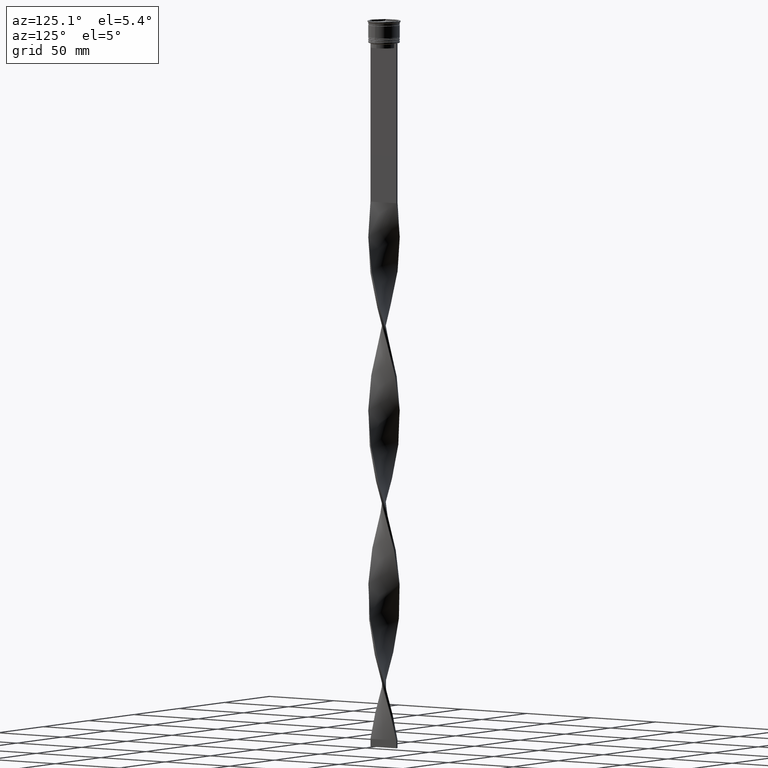
[diagram: clean part render]
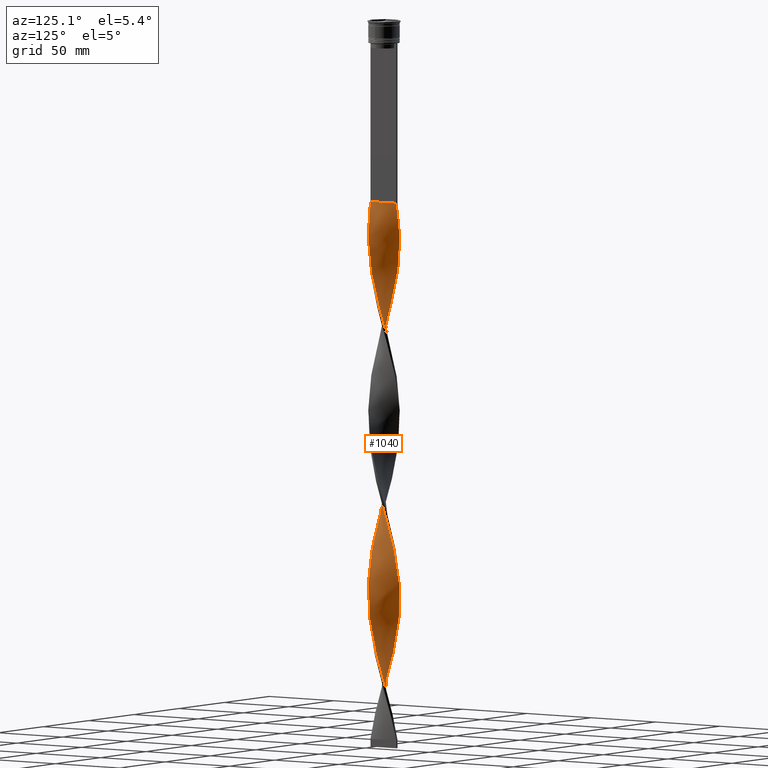
[diagram: same view with one face highlighted and labeled with its STEP entity id]
A machine part, auxiliary view. The second image highlights one B-rep face of the part: STEP entity #1040.
In plain terms, the highlighted face is a freeform B-spline surface patch.
Its self-contained STEP definition (entity closure, byte-faithful):
#5 = CARTESIAN_POINT ( 'NONE',  ( -1.465214115587971211, -9.946358941330901260, -227.7348484848484702 ) ) ;
#6 = CARTESIAN_POINT ( 'NONE',  ( 8.784758693793774498, 4.836374126534754403, -417.4242424242424363 ) ) ;
#13 = CARTESIAN_POINT ( 'NONE',  ( -9.159564155400586216, -4.144791077655436418, -420.0227272727271952 ) ) ;
#20 = CARTESIAN_POINT ( 'NONE',  ( 5.406144972209740551, -8.476467727406427954, -253.7196969696969973 ) ) ;
#31 = CARTESIAN_POINT ( 'NONE',  ( 7.066350193083622777, 7.115419520218547511, -199.1515151515151558 ) ) ;
#45 = CARTESIAN_POINT ( 'NONE',  ( 2.799061189350514844, -9.656198271192604210, -243.3257575757575637 ) ) ;
#46 = CARTESIAN_POINT ( 'NONE',  ( 9.946358941330908365, 1.465214115587969879, -404.4318181818181301 ) ) ;
#55 = CARTESIAN_POINT ( 'NONE',  ( -9.656198271192604210, -2.799061189350513512, -414.8257575757575637 ) ) ;
#65 = CARTESIAN_POINT ( 'NONE',  ( -8.048641294001546598, -5.981795158687154945, -427.8181818181818130 ) ) ;
#66 = CARTESIAN_POINT ( 'NONE',  ( 9.383630318513906943, 3.536945298625171041, -412.2272727272727479 ) ) ;
#77 = CARTESIAN_POINT ( 'NONE',  ( -10.00495054751428903, -0.6807823013221502295, -407.0303030303030027 ) ) ;
#84 = CARTESIAN_POINT ( 'NONE',  ( -9.946358941330903036, 1.465214115587970323, -170.5681818181818414 ) ) ;
#87 = CARTESIAN_POINT ( 'NONE',  ( -7.620814860596662577, -6.557445345164568451, -430.4166666666666856 ) ) ;
#96 = CARTESIAN_POINT ( 'NONE',  ( 5.464672468518299020, -8.438854389437562276, -134.1893939393939661 ) ) ;
#109 = CARTESIAN_POINT ( 'NONE',  ( -9.407881213296597878, -3.471926133502973411, -188.7575757575757507 ) ) ;
#129 = CARTESIAN_POINT ( 'NONE',  ( -9.407881213296604983, 3.471926133502976963, -271.9090909090909349 ) ) ;
#151 = CARTESIAN_POINT ( 'NONE',  ( -10.00495054751429613, 0.6807823013221533381, -282.3030303030303116 ) ) ;
#161 = CARTESIAN_POINT ( 'NONE',  ( -9.999999999999998224, 0.7500000000000007772, -173.1666666666666856 ) ) ;
#162 = CARTESIAN_POINT ( 'NONE',  ( 0.7500000000000001110, -10.00000000000000533, -116.0000000000000000 ) ) ;
#170 = CARTESIAN_POINT ( 'NONE',  ( 5.464672468518299020, -8.438854389437562276, -134.1893939393939377 ) ) ;
#173 = CARTESIAN_POINT ( 'NONE',  ( -8.476467727406433283, 5.406144972209748545, -264.1136363636363171 ) ) ;
#184 = CARTESIAN_POINT ( 'NONE',  ( -4.144791077655435529, 9.159564155400587993, -362.8560606060606233 ) ) ;
#205 = CARTESIAN_POINT ( 'NONE',  ( -9.791478290104370430, -2.165514464143549311, -292.6969696969697452 ) ) ;
#215 = CARTESIAN_POINT ( 'NONE',  ( 6.557445345164568451, -7.620814860596664353, -258.9166666666666288 ) ) ;
#222 = CARTESIAN_POINT ( 'NONE',  ( -2.799061189350513956, 9.656198271192604210, -128.9924242424242209 ) ) ;
#223 = CARTESIAN_POINT ( 'NONE',  ( 1.465214115587970767, -9.946358941330908365, -118.5984848484848442 ) ) ;
#228 = CARTESIAN_POINT ( 'NONE',  ( -5.464672468518299908, 8.438854389437562276, -248.5227272727272521 ) ) ;
#238 = CARTESIAN_POINT ( 'NONE',  ( 8.438854389437555170, -5.464672468518299020, -269.3106060606060623 ) ) ;
#245 = CARTESIAN_POINT ( 'NONE',  ( -10.00000000000000533, -0.7499999999999983347, -287.5000000000000568 ) ) ;
#250 = CARTESIAN_POINT ( 'NONE',  ( 1.396350487056334355, 9.956260036359488197, -451.2045454545454959 ) ) ;
#267 = CARTESIAN_POINT ( 'NONE',  ( 4.775468024932594702, 8.818015941403514191, -209.5454545454545610 ) ) ;
#292 = CARTESIAN_POINT ( 'NONE',  ( -8.818015941403515967, 4.775468024932590261, -266.7121212121212466 ) ) ;
#312 = CARTESIAN_POINT ( 'NONE',  ( 3.471926133502975187, -9.407881213296597878, -245.9242424242424363 ) ) ;
#313 = CARTESIAN_POINT ( 'NONE',  ( -9.130662998149981391, -4.208075784551210674, -300.4924242424242493 ) ) ;
#321 = CARTESIAN_POINT ( 'NONE',  ( -10.05364105866909341, 0.03478588441203076670, -404.4318181818180733 ) ) ;
#325 = CARTESIAN_POINT ( 'NONE',  ( -0.7499999999999988898, 10.00000000000000533, -459.0000000000000000 ) ) ;
#330 = CARTESIAN_POINT ( 'NONE',  ( 4.775468024932588484, -8.818015941403508862, -251.1212121212121247 ) ) ;
#331 = CARTESIAN_POINT ( 'NONE',  ( 9.656198271192611315, -2.799061189350517065, -160.1742424242424363 ) ) ;
#341 = CARTESIAN_POINT ( 'NONE',  ( 0.7500000000000001110, 9.999999999999998224, -344.6666666666666856 ) ) ;
#353 = CARTESIAN_POINT ( 'NONE',  ( -8.048641294001546598, -5.981795158687154945, -199.1515151515151558 ) ) ;
#354 = CARTESIAN_POINT ( 'NONE',  ( 5.981795158687161162, 8.048641294001550150, -433.0151515151515014 ) ) ;
#360 = CARTESIAN_POINT ( 'NONE',  ( -4.208075784551208010, -9.130662998149977838, -446.0075757575756938 ) ) ;
#361 = EDGE_CURVE ( 'NONE', #1776, #2451, #882, .T. ) ;
#368 = CARTESIAN_POINT ( 'NONE',  ( -2.165514464143551088, -9.791478290104359772, -225.1363636363636260 ) ) ;
#378 = CARTESIAN_POINT ( 'NONE',  ( 8.007054715220117913, 6.037348324179364845, -193.9545454545454675 ) ) ;
#382 = ORIENTED_EDGE ( 'NONE', *, *, #2024, .F. ) ;
#387 = CARTESIAN_POINT ( 'NONE',  ( -7.620814860596662577, -6.557445345164568451, -201.7499999999999716 ) ) ;
#388 = CARTESIAN_POINT ( 'NONE',  ( 7.620814860596667906, -6.557445345164574668, -373.2499999999999432 ) ) ;
#398 = CARTESIAN_POINT ( 'NONE',  ( 2.097705838203425266, 9.806229153776049756, -219.9393939393939377 ) ) ;
#415 = CARTESIAN_POINT ( 'NONE',  ( 4.836374126534752627, 8.784758693793767392, -329.0757575757575637 ) ) ;
#417 = CARTESIAN_POINT ( 'NONE',  ( 2.097705838203425266, 9.806229153776049756, -448.6060606060606233 ) ) ;
#427 = CARTESIAN_POINT ( 'NONE',  ( 9.159564155400593322, -4.144791077655439970, -154.9772727272727195 ) ) ;
#433 = CARTESIAN_POINT ( 'NONE',  ( -7.575255041002665557, 6.610024179840426228, -149.7803030303030596 ) ) ;
#436 = CARTESIAN_POINT ( 'NONE',  ( 1.465214115587968102, 9.946358941330901260, -342.0681818181818130 ) ) ;
#437 = CARTESIAN_POINT ( 'NONE',  ( 0.6807823013221528941, 10.00495054751429613, -453.8030303030303116 ) ) ;
#446 = CARTESIAN_POINT ( 'NONE',  ( -7.620814860596663465, -6.557445345164568451, -430.4166666666666856 ) ) ;
#454 = CARTESIAN_POINT ( 'NONE',  ( -4.836374126534751738, -8.784758693793767392, -214.7424242424242209 ) ) ;
#456 = CARTESIAN_POINT ( 'NONE',  ( -7.575255041002665557, 6.610024179840425340, -378.4469696969697452 ) ) ;
#462 = CARTESIAN_POINT ( 'NONE',  ( 6.037348324179364845, -8.007054715220117913, -136.7878787878787818 ) ) ;
#466 = CARTESIAN_POINT ( 'NONE',  ( 4.208075784551211562, -9.130662998149983167, -357.6590909090909918 ) ) ;
#476 = CARTESIAN_POINT ( 'NONE',  ( 1.396350487056330358, -9.956260036359481091, -238.1287878787878469 ) ) ;
#479 = CARTESIAN_POINT ( 'NONE',  ( -3.536945298625169265, -9.383630318513899837, -448.6060606060606233 ) ) ;
#492 = CARTESIAN_POINT ( 'NONE',  ( -10.05364105866910052, -0.03478588441203238346, -284.9015151515151842 ) ) ;
#499 = CARTESIAN_POINT ( 'NONE',  ( -9.956260036359481091, -1.396350487056332801, -180.9621212121212182 ) ) ;
#500 = CARTESIAN_POINT ( 'NONE',  ( -7.115419520218544847, -7.066350193083616560, -433.0151515151515014 ) ) ;
#507 = CARTESIAN_POINT ( 'NONE',  ( 9.407881213296603207, -3.471926133502977851, -157.5757575757575921 ) ) ;
#510 = CARTESIAN_POINT ( 'NONE',  ( 9.656198271192611315, -2.799061189350517065, -388.8409090909090651 ) ) ;
#522 = CARTESIAN_POINT ( 'NONE',  ( -9.636597638877821836, 2.865814812699130076, -165.3712121212120962 ) ) ;
#537 = CARTESIAN_POINT ( 'NONE',  ( -10.00000000000000533, -0.7499999999999983347, -287.5000000000000568 ) ) ;
#548 = CARTESIAN_POINT ( 'NONE',  ( 9.946358941330903036, -1.465214115587967214, -284.9015151515151842 ) ) ;
#559 = ORIENTED_EDGE ( 'NONE', *, *, #2371, .F. ) ;
#567 = CARTESIAN_POINT ( 'NONE',  ( -8.048641294001550150, 5.981795158687161162, -261.5151515151515582 ) ) ;
#578 = CARTESIAN_POINT ( 'NONE',  ( 2.799061189350514844, -9.656198271192604210, -243.3257575757575637 ) ) ;
#584 = CARTESIAN_POINT ( 'NONE',  ( -8.438854389437556947, 5.464672468518296355, -154.9772727272727195 ) ) ;
#585 = CARTESIAN_POINT ( 'NONE',  ( 7.066350193083622777, 7.115419520218547511, -199.1515151515151558 ) ) ;
#604 = CARTESIAN_POINT ( 'NONE',  ( -5.406144972209740551, 8.476467727406427954, -139.3863636363636260 ) ) ;
#606 = CARTESIAN_POINT ( 'NONE',  ( 9.956260036359488197, -1.396350487056333467, -165.3712121212121247 ) ) ;
#630 = CARTESIAN_POINT ( 'NONE',  ( -8.007054715220119689, -6.037348324179360404, -308.2878787878788103 ) ) ;
#638 = CARTESIAN_POINT ( 'NONE',  ( 8.784758693793774498, 4.836374126534754403, -417.4242424242424363 ) ) ;
#655 = CARTESIAN_POINT ( 'NONE',  ( 8.784758693793767392, -4.836374126534752627, -271.9090909090909349 ) ) ;
#656 = CARTESIAN_POINT ( 'NONE',  ( -2.865814812699129632, 9.636597638877828942, -238.1287878787878469 ) ) ;
#663 = CARTESIAN_POINT ( 'NONE',  ( -9.946358941330903036, 1.465214115587970323, -399.2348484848484418 ) ) ;
#674 = CARTESIAN_POINT ( 'NONE',  ( 2.097705838203419937, -9.806229153776046203, -240.7272727272727479 ) ) ;
#675 = CARTESIAN_POINT ( 'NONE',  ( 9.636597638877828942, 2.865814812699132741, -180.9621212121212182 ) ) ;
#679 = CARTESIAN_POINT ( 'NONE',  ( 9.956260036359488197, -1.396350487056333245, -394.0378787878788103 ) ) ;
#684 = CARTESIAN_POINT ( 'NONE',  ( 8.048641294001544821, 5.981795158687156722, -313.4848484848484986 ) ) ;
#692 = CARTESIAN_POINT ( 'NONE',  ( 8.476467727406429731, 5.406144972209740551, -310.8863636363635692 ) ) ;
#693 = CARTESIAN_POINT ( 'NONE',  ( 0.7500000000000001110, -10.00000000000000533, -344.6666666666666856 ) ) ;
#702 = CARTESIAN_POINT ( 'NONE',  ( 9.791478290104359772, -2.165514464143551532, -282.3030303030303116 ) ) ;
#708 = CARTESIAN_POINT ( 'NONE',  ( -0.7500000000000014433, -9.999999999999998224, -459.0000000000000000 ) ) ;
#713 = CARTESIAN_POINT ( 'NONE',  ( -9.956260036359481091, -1.396350487056333023, -180.9621212121212182 ) ) ;
#714 = CARTESIAN_POINT ( 'NONE',  ( 9.159564155400593322, -4.144791077655439082, -383.6439393939393767 ) ) ;
#722 = CARTESIAN_POINT ( 'NONE',  ( 8.438854389437562276, 5.464672468518299908, -191.3560606060605949 ) ) ;
#731 = CARTESIAN_POINT ( 'NONE',  ( -9.656198271192604210, -2.799061189350513512, -186.1590909090908781 ) ) ;
#741 = CARTESIAN_POINT ( 'NONE',  ( 8.476467727406435060, -5.406144972209745880, -149.7803030303030596 ) ) ;
#753 = CARTESIAN_POINT ( 'NONE',  ( 6.037348324179360404, 8.007054715220112584, -323.8787878787878753 ) ) ;
#754 = CARTESIAN_POINT ( 'NONE',  ( 2.865814812699132297, -9.636597638877828942, -352.4621212121211897 ) ) ;
#764 = CARTESIAN_POINT ( 'NONE',  ( 1.465214115587970545, -9.946358941330910142, -118.5984848484848442 ) ) ;
#778 = CARTESIAN_POINT ( 'NONE',  ( -2.865814812699130520, -9.636597638877821836, -451.2045454545454959 ) ) ;
#779 = CARTESIAN_POINT ( 'NONE',  ( -2.097705838203426598, -9.806229153776049756, -334.2727272727272521 ) ) ;
#787 = CARTESIAN_POINT ( 'NONE',  ( 6.037348324179364845, -8.007054715220117913, -136.7878787878787818 ) ) ;
#795 = CARTESIAN_POINT ( 'NONE',  ( -3.471926133502974299, 9.407881213296597878, -131.5909090909090935 ) ) ;
#797 = CARTESIAN_POINT ( 'NONE',  ( 2.865814812699136294, 9.636597638877821836, -336.8712121212120678 ) ) ;
#808 = CARTESIAN_POINT ( 'NONE',  ( -4.144791077655442635, -9.159564155400591545, -326.4772727272727479 ) ) ;
#812 = VERTEX_POINT ( 'NONE', #3049 ) ;
#817 = CARTESIAN_POINT ( 'NONE',  ( 0.6807823013221493413, -10.00495054751428903, -235.5303030303030312 ) ) ;
#830 = CARTESIAN_POINT ( 'NONE',  ( 8.476467727406435060, -5.406144972209745880, -378.4469696969697452 ) ) ;
#840 = CARTESIAN_POINT ( 'NONE',  ( -2.799061189350513956, 9.656198271192604210, -357.6590909090909349 ) ) ;
#849 = CARTESIAN_POINT ( 'NONE',  ( 8.476467727406435060, -5.406144972209745880, -149.7803030303030312 ) ) ;
#852 = CARTESIAN_POINT ( 'NONE',  ( 7.115419520218548399, -7.066350193083622777, -370.6515151515151842 ) ) ;
#862 = CARTESIAN_POINT ( 'NONE',  ( 0.03478588441202978832, 10.05364105866909341, -118.5984848484848442 ) ) ;
#874 = CARTESIAN_POINT ( 'NONE',  ( -6.610024179840428893, 7.575255041002672662, -253.7196969696969973 ) ) ;
#882 =( BOUNDED_CURVE ( )  B_SPLINE_CURVE ( 2, ( #2574, #223, #1592, #4247, #2171, #4314, #3537, #170, #462, #1179, #2550, #3910, #1876, #849, #2220, #3581, #507, #331, #1994, #606, #943, #3738, #3409, #2359, #2294, #675, #1968, #3719, #3649, #2714, #3690, #2689, #585, #3025, #921, #2332, #267, #2035, #1702, #2619, #1250, #2380, #1340, #4074, #2977, #4047, #3979, #656, #4336, #2647, #1274, #2015, #3342, #4381, #2312, #4006, #1661, #1948, #292, #3072, #4405, #3391, #1640, #964, #3320, #1009, #245, #1614, #3670, #3004, #4362, #313, #1297, #1317, #630, #2668, #4026, #3368, #983, #1679, #3044, #4151, #3816, #3088, #779, #1426, #3107, #1104, #693, #3756, #1740, #754, #1025, #3486, #4106, #2476, #1381, #2147, #3129, #388, #1399, #1760, #3447, #714, #1723, #2769, #3432, #1085, #2398, #1443, #3153, #46, #1782, #3836, #66, #2812, #6, #2791, #1364, #2458, #2749, #2121, #354, #1043, #3464, #2416, #2055, #4129, #417, #3507, #437, #3775, #4170 ),
 .UNSPECIFIED., .F., .T. ) 
 B_SPLINE_CURVE_WITH_KNOTS ( ( 3, 2, 2, 2, 2, 2, 2, 2, 2, 2, 2, 2, 2, 2, 2, 2, 2, 2, 2, 2, 2, 2, 2, 2, 2, 2, 2, 2, 2, 2, 2, 2, 2, 2, 2, 2, 2, 2, 2, 2, 2, 2, 2, 2, 2, 2, 2, 2, 2, 2, 2, 2, 2, 2, 2, 2, 2, 2, 2, 2, 2, 2, 2, 2, 2, 2, 3 ),
 ( 0.000000000000000000, 0.01136363636363636222, 0.02272727272727272443, 0.03409090909090908839, 0.04545454545454544887, 0.05681818181818181629, 0.06818181818181817677, 0.07954545454545454419, 0.09090909090909089774, 0.1022727272727272790, 0.1136363636363636326, 0.1250000000000000000, 0.1363636363636363535, 0.1477272727272727348, 0.1590909090909090884, 0.1704545454545454419, 0.1818181818181817955, 0.1931818181818182045, 0.2045454545454545581, 0.2159090909090909116, 0.2272727272727272652, 0.2386363636363636465, 0.2500000000000000000, 0.2613636363636363535, 0.2727272727272727071, 0.2840909090909091161, 0.2954545454545454697, 0.3068181818181818232, 0.3181818181818181768, 0.3295454545454545303, 0.3409090909090908839, 0.3522727272727272929, 0.3636363636363635909, 0.3750000000000000000, 0.3863636363636364091, 0.3977272727272727071, 0.4090909090909091161, 0.4204545454545454697, 0.4318181818181818232, 0.4431818181818181768, 0.4545454545454545303, 0.4659090909090908839, 0.4772727272727272929, 0.4886363636363635909, 0.5000000000000000000, 0.5113636363636363535, 0.5227272727272727071, 0.5340909090909090606, 0.5454545454545454142, 0.5568181818181817677, 0.5681818181818182323, 0.5795454545454545858, 0.5909090909090909394, 0.6022727272727272929, 0.6136363636363636465, 0.6250000000000000000, 0.6363636363636363535, 0.6477272727272727071, 0.6590909090909090606, 0.6704545454545454142, 0.6818181818181817677, 0.6931818181818182323, 0.7045454545454545858, 0.7159090909090909394, 0.7272727272727271819, 0.7386363636363636465, 0.7500000000000000000 ),
 .UNSPECIFIED. ) 
 CURVE ( )  GEOMETRIC_REPRESENTATION_ITEM ( )  RATIONAL_B_SPLINE_CURVE ( ( 1.000000000000000000, 0.9974521146102535152, 1.000000000000000000, 0.9974521146102535152, 1.000000000000000000, 0.9974521146102535152, 1.000000000000000000, 0.9974521146102535152, 1.000000000000000000, 0.9974521146102535152, 1.000000000000000000, 0.9974521146102535152, 1.000000000000000000, 0.9974521146102535152, 1.000000000000000000, 0.9974521146102535152, 1.000000000000000000, 0.9974521146102535152, 1.000000000000000000, 0.9974521146102535152, 1.000000000000000000, 0.9974521146102535152, 1.000000000000000000, 0.9974521146102535152, 1.000000000000000000, 0.9974521146102535152, 1.000000000000000000, 0.9974521146102535152, 1.000000000000000000, 0.9974521146102535152, 1.000000000000000000, 0.9974521146102535152, 1.000000000000000000, 0.9974521146102535152, 1.000000000000000000, 0.9974521146102535152, 1.000000000000000000, 0.9974521146102535152, 1.000000000000000000, 0.9974521146102535152, 1.000000000000000000, 0.9974521146102535152, 1.000000000000000000, 0.9974521146102535152, 1.000000000000000000, 0.9974521146102535152, 1.000000000000000000, 0.9974521146102535152, 1.000000000000000000, 0.9974521146102535152, 1.000000000000000000, 0.9974521146102535152, 1.000000000000000000, 0.9974521146102535152, 1.000000000000000000, 0.9974521146102535152, 1.000000000000000000, 0.9974521146102535152, 1.000000000000000000, 0.9974521146102535152, 1.000000000000000000, 0.9974521146102535152, 1.000000000000000000, 0.9974521146102535152, 1.000000000000000000, 0.9974521146102535152, 1.000000000000000000, 0.9974521146102535152, 1.000000000000000000, 0.9974521146102535152, 1.000000000000000000, 0.9974521146102535152, 1.000000000000000000, 0.9974521146102535152, 1.000000000000000000, 0.9974521146102535152, 1.000000000000000000, 0.9974521146102535152, 1.000000000000000000, 0.9974521146102535152, 1.000000000000000000, 0.9974521146102535152, 1.000000000000000000, 0.9974521146102535152, 1.000000000000000000, 0.9974521146102535152, 1.000000000000000000, 0.9974521146102535152, 1.000000000000000000, 0.9974521146102535152, 1.000000000000000000, 0.9974521146102535152, 1.000000000000000000, 0.9974521146102535152, 1.000000000000000000, 0.9974521146102535152, 1.000000000000000000, 0.9974521146102535152, 1.000000000000000000, 0.9974521146102535152, 1.000000000000000000, 0.9974521146102535152, 1.000000000000000000, 0.9974521146102535152, 1.000000000000000000, 0.9974521146102535152, 1.000000000000000000, 0.9974521146102535152, 1.000000000000000000, 0.9974521146102535152, 1.000000000000000000, 0.9974521146102535152, 1.000000000000000000, 0.9974521146102535152, 1.000000000000000000, 0.9974521146102535152, 1.000000000000000000, 0.9974521146102535152, 1.000000000000000000, 0.9974521146102535152, 1.000000000000000000, 0.9974521146102535152, 1.000000000000000000, 0.9974521146102535152, 1.000000000000000000, 0.9974521146102535152, 1.000000000000000000, 0.9974521146102535152, 1.000000000000000000, 0.9974521146102535152, 1.000000000000000000, 0.9974521146102535152, 1.000000000000000000 ) ) 
 REPRESENTATION_ITEM ( '' )  );
#884 = CARTESIAN_POINT ( 'NONE',  ( 10.00495054751428903, 0.6807823013221486752, -292.6969696969697452 ) ) ;
#894 = CARTESIAN_POINT ( 'NONE',  ( -2.097705838203423490, 9.806229153776044427, -126.3939393939393909 ) ) ;
#898 = CARTESIAN_POINT ( 'NONE',  ( 0.7500000000000001110, -10.00000000000000533, -344.6666666666666856 ) ) ;
#908 = CARTESIAN_POINT ( 'NONE',  ( -9.130662998149976062, 4.208075784551209786, -388.8409090909090651 ) ) ;
#918 = CARTESIAN_POINT ( 'NONE',  ( -7.066350193083617448, 7.115419520218543958, -147.1818181818181870 ) ) ;
#921 = CARTESIAN_POINT ( 'NONE',  ( 5.981795158687161162, 8.048641294001550150, -204.3484848484848726 ) ) ;
#927 = CARTESIAN_POINT ( 'NONE',  ( 2.799061189350515289, 9.656198271192613092, -446.0075757575756938 ) ) ;
#943 = CARTESIAN_POINT ( 'NONE',  ( 10.00495054751429613, -0.6807823013221522279, -167.9696969696969973 ) ) ;
#964 = CARTESIAN_POINT ( 'NONE',  ( -9.956260036359488197, 1.396350487056339018, -279.7045454545454390 ) ) ;
#968 = CARTESIAN_POINT ( 'NONE',  ( 8.007054715220117913, 6.037348324179364845, -422.6212121212121247 ) ) ;
#982 = CARTESIAN_POINT ( 'NONE',  ( -9.159564155400586216, -4.144791077655436418, -191.3560606060605949 ) ) ;
#983 = CARTESIAN_POINT ( 'NONE',  ( -5.981795158687158498, -8.048641294001550150, -318.6818181818181870 ) ) ;
#995 = CARTESIAN_POINT ( 'NONE',  ( 9.407881213296599654, 3.471926133502971190, -303.0909090909091219 ) ) ;
#1008 = CARTESIAN_POINT ( 'NONE',  ( 9.956260036359481091, 1.396350487056334133, -295.2954545454545041 ) ) ;
#1009 = CARTESIAN_POINT ( 'NONE',  ( -10.05364105866910052, -0.03478588441203238346, -284.9015151515151842 ) ) ;
#1013 = CARTESIAN_POINT ( 'NONE',  ( -0.03478588441202849074, 10.05364105866910052, -456.4015151515151274 ) ) ;
#1016 = CARTESIAN_POINT ( 'NONE',  ( 7.620814860596664353, 6.557445345164567563, -316.0833333333332575 ) ) ;
#1020 = CARTESIAN_POINT ( 'NONE',  ( -0.7500000000000005551, -3.333333333333330373, -459.0000000000000000 ) ) ;
#1024 = CARTESIAN_POINT ( 'NONE',  ( 8.048641294001544821, 5.981795158687156722, -313.4848484848484986 ) ) ;
#1025 = CARTESIAN_POINT ( 'NONE',  ( 3.536945298625171041, -9.383630318513906943, -355.0606060606060623 ) ) ;
#1031 = CARTESIAN_POINT ( 'NONE',  ( 4.208075784551213339, 9.130662998149976062, -331.6742424242423795 ) ) ;
#1040 = ADVANCED_FACE ( 'NONE', ( #1818 ), #1969, .T. ) ;
#1042 = CARTESIAN_POINT ( 'NONE',  ( -0.03478588441203151610, -10.05364105866909341, -232.9318181818181870 ) ) ;
#1043 = CARTESIAN_POINT ( 'NONE',  ( 5.406144972209748545, 8.476467727406433283, -435.6136363636363171 ) ) ;
#1053 = CARTESIAN_POINT ( 'NONE',  ( 9.791478290104370430, 2.165514464143550200, -178.3636363636364024 ) ) ;
#1062 = CARTESIAN_POINT ( 'NONE',  ( -8.784758693793767392, 4.836374126534752627, -157.5757575757575921 ) ) ;
#1073 = CARTESIAN_POINT ( 'NONE',  ( 3.471926133502976075, 9.407881213296604983, -214.7424242424242209 ) ) ;
#1084 = CARTESIAN_POINT ( 'NONE',  ( -8.818015941403507085, -4.775468024932588484, -422.6212121212121247 ) ) ;
#1085 = CARTESIAN_POINT ( 'NONE',  ( 9.956260036359488197, -1.396350487056333467, -394.0378787878787534 ) ) ;
#1093 = CARTESIAN_POINT ( 'NONE',  ( 4.836374126534755291, -8.784758693793774498, -131.5909090909090935 ) ) ;
#1103 = CARTESIAN_POINT ( 'NONE',  ( -6.610024179840426228, -7.575255041002664669, -435.6136363636363171 ) ) ;
#1104 = CARTESIAN_POINT ( 'NONE',  ( 0.03478588441203162712, -10.05364105866910052, -342.0681818181818130 ) ) ;
#1113 = CARTESIAN_POINT ( 'NONE',  ( -3.536945298625169265, -9.383630318513899837, -448.6060606060606233 ) ) ;
#1127 = CARTESIAN_POINT ( 'NONE',  ( -8.048641294001546598, -5.981795158687154945, -199.1515151515151558 ) ) ;
#1129 = CARTESIAN_POINT ( 'NONE',  ( -5.981795158687155833, 8.048641294001546598, -370.6515151515151842 ) ) ;
#1140 = CARTESIAN_POINT ( 'NONE',  ( -8.048641294001546598, -5.981795158687154945, -427.8181818181818130 ) ) ;
#1148 = CARTESIAN_POINT ( 'NONE',  ( -2.165514464143551088, -9.791478290104359772, -225.1363636363636260 ) ) ;
#1151 = CARTESIAN_POINT ( 'NONE',  ( -8.007054715220110808, 6.037348324179362180, -381.0454545454545610 ) ) ;
#1161 = CARTESIAN_POINT ( 'NONE',  ( 7.620814860596668794, -6.557445345164574668, -373.2499999999999432 ) ) ;
#1179 = CARTESIAN_POINT ( 'NONE',  ( 6.610024179840428005, -7.575255041002671774, -139.3863636363636260 ) ) ;
#1183 = CARTESIAN_POINT ( 'NONE',  ( -2.799061189350521062, -9.656198271192609539, -331.6742424242423795 ) ) ;
#1194 = CARTESIAN_POINT ( 'NONE',  ( -6.557445345164569339, 7.620814860596663465, -144.5833333333333428 ) ) ;
#1211 = CARTESIAN_POINT ( 'NONE',  ( -0.7499999999999988898, 10.00000000000000533, -230.3333333333333428 ) ) ;
#1221 = CARTESIAN_POINT ( 'NONE',  ( 6.610024179840427117, 7.575255041002662892, -321.2803030303030596 ) ) ;
#1233 = CARTESIAN_POINT ( 'NONE',  ( -2.165514464143549311, 9.791478290104370430, -235.5303030303030312 ) ) ;
#1242 = CARTESIAN_POINT ( 'NONE',  ( -8.438854389437556947, 5.464672468518296355, -383.6439393939393767 ) ) ;
#1250 = CARTESIAN_POINT ( 'NONE',  ( 2.097705838203425266, 9.806229153776049756, -219.9393939393939377 ) ) ;
#1254 = CARTESIAN_POINT ( 'NONE',  ( -9.159564155400591545, 4.144791077655442635, -269.3106060606060623 ) ) ;
#1274 = CARTESIAN_POINT ( 'NONE',  ( -4.836374126534756179, 8.784758693793772721, -245.9242424242424363 ) ) ;
#1280 = CARTESIAN_POINT ( 'NONE',  ( 10.00495054751429613, -0.6807823013221522279, -396.6363636363636260 ) ) ;
#1288 = ORIENTED_EDGE ( 'NONE', *, *, #361, .T. ) ;
#1296 = CARTESIAN_POINT ( 'NONE',  ( 0.7500000000000002220, 9.999999999999998224, -116.0000000000000000 ) ) ;
#1297 = CARTESIAN_POINT ( 'NONE',  ( -8.784758693793776274, -4.836374126534751738, -303.0909090909091219 ) ) ;
#1302 = CARTESIAN_POINT ( 'NONE',  ( 4.775468024932594702, 8.818015941403514191, -438.2121212121212466 ) ) ;
#1317 = CARTESIAN_POINT ( 'NONE',  ( -8.438854389437562276, -5.464672468518299020, -305.6893939393939945 ) ) ;
#1326 = CARTESIAN_POINT ( 'NONE',  ( 5.464672468518299908, 8.438854389437555170, -326.4772727272727479 ) ) ;
#1339 = CARTESIAN_POINT ( 'NONE',  ( -5.464672468518298132, -8.438854389437555170, -212.1439393939393767 ) ) ;
#1340 = CARTESIAN_POINT ( 'NONE',  ( 0.6807823013221528941, 10.00495054751429613, -225.1363636363636260 ) ) ;
#1343 =( BOUNDED_CURVE ( )  B_SPLINE_CURVE ( 2, ( #1296, #1568, #4291, #2597, #894, #222, #2311, #1924, #2265, #604, #3623, #1591, #918, #2293, #3648, #584, #1062, #2078, #1363, #2768, #1722, #4128, #1678, #4427, #2437, #713, #3463, #731, #3795, #982, #4046, #2098, #353, #387, #3106, #2415, #3446, #1339, #1758, #4105, #2731, #1701, #368, #5, #2054, #1042, #1739, #3128, #674, #45, #312, #3772, #330, #20, #1398, #3087, #4073, #2688, #2356, #3718, #655, #2014, #2034, #3390, #3043, #4403, #1380, #2711, #4089, #1008, #2379, #3737, #3408, #3069, #3755, #692, #1024, #2397, #3429, #2748, #753, #4221, #415, #2542, #3553, #797, #2811, #436, #3902, #2457, #2831, #1490, #2213, #840, #4169, #3190, #3882, #2146, #1129, #2120, #2876, #456, #1151, #3815, #2502, #3485, #4192, #2164, #1462, #3529, #1442, #1425, #3169, #1781, #3574, #2790, #4150, #3152, #1084, #4240, #65, #87, #500, #1103, #2475, #3861, #2185, #3835, #479, #778, #1869, #3506, #3236 ),
 .UNSPECIFIED., .F., .T. ) 
 B_SPLINE_CURVE_WITH_KNOTS ( ( 3, 2, 2, 2, 2, 2, 2, 2, 2, 2, 2, 2, 2, 2, 2, 2, 2, 2, 2, 2, 2, 2, 2, 2, 2, 2, 2, 2, 2, 2, 2, 2, 2, 2, 2, 2, 2, 2, 2, 2, 2, 2, 2, 2, 2, 2, 2, 2, 2, 2, 2, 2, 2, 2, 2, 2, 2, 2, 2, 2, 2, 2, 2, 2, 2, 2, 3 ),
 ( 0.000000000000000000, 0.01136363636363636222, 0.02272727272727272443, 0.03409090909090908839, 0.04545454545454544887, 0.05681818181818181629, 0.06818181818181817677, 0.07954545454545454419, 0.09090909090909089774, 0.1022727272727272790, 0.1136363636363636326, 0.1250000000000000000, 0.1363636363636363535, 0.1477272727272727348, 0.1590909090909090884, 0.1704545454545454419, 0.1818181818181817955, 0.1931818181818182045, 0.2045454545454545581, 0.2159090909090909116, 0.2272727272727272652, 0.2386363636363636465, 0.2500000000000000000, 0.2613636363636363535, 0.2727272727272727071, 0.2840909090909091161, 0.2954545454545454697, 0.3068181818181818232, 0.3181818181818181768, 0.3295454545454545303, 0.3409090909090908839, 0.3522727272727272929, 0.3636363636363635909, 0.3750000000000000000, 0.3863636363636364091, 0.3977272727272727071, 0.4090909090909091161, 0.4204545454545454697, 0.4318181818181818232, 0.4431818181818181768, 0.4545454545454545303, 0.4659090909090908839, 0.4772727272727272929, 0.4886363636363635909, 0.5000000000000000000, 0.5113636363636363535, 0.5227272727272727071, 0.5340909090909090606, 0.5454545454545454142, 0.5568181818181817677, 0.5681818181818182323, 0.5795454545454545858, 0.5909090909090909394, 0.6022727272727272929, 0.6136363636363636465, 0.6250000000000000000, 0.6363636363636363535, 0.6477272727272727071, 0.6590909090909090606, 0.6704545454545454142, 0.6818181818181817677, 0.6931818181818182323, 0.7045454545454545858, 0.7159090909090909394, 0.7272727272727271819, 0.7386363636363636465, 0.7500000000000000000 ),
 .UNSPECIFIED. ) 
 CURVE ( )  GEOMETRIC_REPRESENTATION_ITEM ( )  RATIONAL_B_SPLINE_CURVE ( ( 1.000000000000000000, 0.9974521146102535152, 1.000000000000000000, 0.9974521146102535152, 1.000000000000000000, 0.9974521146102535152, 1.000000000000000000, 0.9974521146102535152, 1.000000000000000000, 0.9974521146102535152, 1.000000000000000000, 0.9974521146102535152, 1.000000000000000000, 0.9974521146102535152, 1.000000000000000000, 0.9974521146102535152, 1.000000000000000000, 0.9974521146102535152, 1.000000000000000000, 0.9974521146102535152, 1.000000000000000000, 0.9974521146102535152, 1.000000000000000000, 0.9974521146102535152, 1.000000000000000000, 0.9974521146102535152, 1.000000000000000000, 0.9974521146102535152, 1.000000000000000000, 0.9974521146102535152, 1.000000000000000000, 0.9974521146102535152, 1.000000000000000000, 0.9974521146102535152, 1.000000000000000000, 0.9974521146102535152, 1.000000000000000000, 0.9974521146102535152, 1.000000000000000000, 0.9974521146102535152, 1.000000000000000000, 0.9974521146102535152, 1.000000000000000000, 0.9974521146102535152, 1.000000000000000000, 0.9974521146102535152, 1.000000000000000000, 0.9974521146102535152, 1.000000000000000000, 0.9974521146102535152, 1.000000000000000000, 0.9974521146102535152, 1.000000000000000000, 0.9974521146102535152, 1.000000000000000000, 0.9974521146102535152, 1.000000000000000000, 0.9974521146102535152, 1.000000000000000000, 0.9974521146102535152, 1.000000000000000000, 0.9974521146102535152, 1.000000000000000000, 0.9974521146102535152, 1.000000000000000000, 0.9974521146102535152, 1.000000000000000000, 0.9974521146102535152, 1.000000000000000000, 0.9974521146102535152, 1.000000000000000000, 0.9974521146102535152, 1.000000000000000000, 0.9974521146102535152, 1.000000000000000000, 0.9974521146102535152, 1.000000000000000000, 0.9974521146102535152, 1.000000000000000000, 0.9974521146102535152, 1.000000000000000000, 0.9974521146102535152, 1.000000000000000000, 0.9974521146102535152, 1.000000000000000000, 0.9974521146102535152, 1.000000000000000000, 0.9974521146102535152, 1.000000000000000000, 0.9974521146102535152, 1.000000000000000000, 0.9974521146102535152, 1.000000000000000000, 0.9974521146102535152, 1.000000000000000000, 0.9974521146102535152, 1.000000000000000000, 0.9974521146102535152, 1.000000000000000000, 0.9974521146102535152, 1.000000000000000000, 0.9974521146102535152, 1.000000000000000000, 0.9974521146102535152, 1.000000000000000000, 0.9974521146102535152, 1.000000000000000000, 0.9974521146102535152, 1.000000000000000000, 0.9974521146102535152, 1.000000000000000000, 0.9974521146102535152, 1.000000000000000000, 0.9974521146102535152, 1.000000000000000000, 0.9974521146102535152, 1.000000000000000000, 0.9974521146102535152, 1.000000000000000000, 0.9974521146102535152, 1.000000000000000000, 0.9974521146102535152, 1.000000000000000000, 0.9974521146102535152, 1.000000000000000000, 0.9974521146102535152, 1.000000000000000000, 0.9974521146102535152, 1.000000000000000000, 0.9974521146102535152, 1.000000000000000000, 0.9974521146102535152, 1.000000000000000000 ) ) 
 REPRESENTATION_ITEM ( '' )  );
#1353 = CARTESIAN_POINT ( 'NONE',  ( 7.115419520218541294, 7.066350193083619224, -318.6818181818181870 ) ) ;
#1363 = CARTESIAN_POINT ( 'NONE',  ( -9.383630318513899837, 3.536945298625170153, -162.7727272727272805 ) ) ;
#1364 = CARTESIAN_POINT ( 'NONE',  ( 8.007054715220117913, 6.037348324179364845, -422.6212121212121247 ) ) ;
#1372 = CARTESIAN_POINT ( 'NONE',  ( 5.981795158687154945, -8.048641294001546598, -256.3181818181818130 ) ) ;
#1380 = CARTESIAN_POINT ( 'NONE',  ( 9.999999999999998224, -0.7500000000000021094, -287.5000000000000568 ) ) ;
#1381 = CARTESIAN_POINT ( 'NONE',  ( 6.037348324179364845, -8.007054715220117913, -365.4545454545454959 ) ) ;
#1389 = CARTESIAN_POINT ( 'NONE',  ( -4.836374126534751738, -8.784758693793767392, -443.4090909090909349 ) ) ;
#1398 = CARTESIAN_POINT ( 'NONE',  ( 5.981795158687154945, -8.048641294001546598, -256.3181818181818130 ) ) ;
#1399 = CARTESIAN_POINT ( 'NONE',  ( 8.048641294001550150, -5.981795158687160274, -375.8484848484848726 ) ) ;
#1413 = CARTESIAN_POINT ( 'NONE',  ( 0.7500000000000001110, -10.00000000000000533, -116.0000000000000000 ) ) ;
#1425 = CARTESIAN_POINT ( 'NONE',  ( -10.05364105866909341, 0.03478588441203087078, -404.4318181818181301 ) ) ;
#1426 = CARTESIAN_POINT ( 'NONE',  ( -1.396350487056339462, -9.956260036359488197, -336.8712121212120678 ) ) ;
#1434 = CARTESIAN_POINT ( 'NONE',  ( 4.775468024932594702, 8.818015941403514191, -209.5454545454545610 ) ) ;
#1442 = CARTESIAN_POINT ( 'NONE',  ( -9.999999999999998224, 0.7500000000000008882, -401.8333333333333144 ) ) ;
#1443 = CARTESIAN_POINT ( 'NONE',  ( 10.05364105866910052, 0.03478588441202913606, -399.2348484848484418 ) ) ;
#1452 = CARTESIAN_POINT ( 'NONE',  ( 8.048641294001550150, -5.981795158687160274, -147.1818181818181870 ) ) ;
#1460 = CARTESIAN_POINT ( 'NONE',  ( -9.159564155400586216, -4.144791077655436418, -191.3560606060605949 ) ) ;
#1462 = CARTESIAN_POINT ( 'NONE',  ( -9.791478290104359772, 2.165514464143550644, -396.6363636363636260 ) ) ;
#1472 = CARTESIAN_POINT ( 'NONE',  ( 7.620814860596668794, -6.557445345164574668, -144.5833333333333428 ) ) ;
#1488 = CARTESIAN_POINT ( 'NONE',  ( -3.536945298625169265, -9.383630318513899837, -219.9393939393939377 ) ) ;
#1490 = CARTESIAN_POINT ( 'NONE',  ( -1.396350487056332579, 9.956260036359481091, -352.4621212121211897 ) ) ;
#1501 = CARTESIAN_POINT ( 'NONE',  ( 6.037348324179364845, -8.007054715220117913, -365.4545454545454959 ) ) ;
#1510 = CARTESIAN_POINT ( 'NONE',  ( 0.7500000000000001110, 9.999999999999998224, -116.0000000000000000 ) ) ;
#1521 = CARTESIAN_POINT ( 'NONE',  ( -9.383630318513908719, -3.536945298625168377, -297.8939393939394336 ) ) ;
#1541 = CARTESIAN_POINT ( 'NONE',  ( -9.656198271192609539, 2.799061189350521062, -274.5075757575757507 ) ) ;
#1556 = CARTESIAN_POINT ( 'NONE',  ( -4.775468024932588484, 8.818015941403508862, -365.4545454545454959 ) ) ;
#1568 = CARTESIAN_POINT ( 'NONE',  ( 0.03478588441202989240, 10.05364105866909341, -118.5984848484848442 ) ) ;
#1574 = CARTESIAN_POINT ( 'NONE',  ( -8.007054715220119689, -6.037348324179360404, -308.2878787878788103 ) ) ;
#1583 = CARTESIAN_POINT ( 'NONE',  ( -2.799061189350513956, 9.656198271192604210, -357.6590909090909918 ) ) ;
#1591 = CARTESIAN_POINT ( 'NONE',  ( -6.557445345164569339, 7.620814860596662577, -144.5833333333333428 ) ) ;
#1592 = CARTESIAN_POINT ( 'NONE',  ( 2.165514464143551976, -9.791478290104366877, -121.1969696969697026 ) ) ;
#1597 = CARTESIAN_POINT ( 'NONE',  ( -9.636597638877828942, -2.865814812699133629, -295.2954545454545041 ) ) ;
#1607 = LINE ( 'NONE', #162, #3901 ) ;
#1614 = CARTESIAN_POINT ( 'NONE',  ( -9.946358941330908365, -1.465214115587972765, -290.0984848484848726 ) ) ;
#1620 = CARTESIAN_POINT ( 'NONE',  ( -0.7499999999999988898, 10.00000000000000533, -459.0000000000000000 ) ) ;
#1640 = CARTESIAN_POINT ( 'NONE',  ( -9.806229153776049756, 2.097705838203426154, -277.1060606060606233 ) ) ;
#1661 = CARTESIAN_POINT ( 'NONE',  ( -8.048641294001550150, 5.981795158687161162, -261.5151515151515582 ) ) ;
#1665 = CARTESIAN_POINT ( 'NONE',  ( 6.557445345164574668, 7.620814860596667906, -430.4166666666666856 ) ) ;
#1669 = CARTESIAN_POINT ( 'NONE',  ( 8.818015941403510638, 4.775468024932583155, -308.2878787878788103 ) ) ;
#1678 = CARTESIAN_POINT ( 'NONE',  ( -9.999999999999998224, 0.7500000000000008882, -173.1666666666666856 ) ) ;
#1679 = CARTESIAN_POINT ( 'NONE',  ( -5.406144972209749433, -8.476467727406431507, -321.2803030303030027 ) ) ;
#1688 = CARTESIAN_POINT ( 'NONE',  ( 10.05364105866909341, -0.03478588441202762338, -290.0984848484849294 ) ) ;
#1701 = CARTESIAN_POINT ( 'NONE',  ( -2.865814812699130520, -9.636597638877821836, -222.5378787878787534 ) ) ;
#1702 = CARTESIAN_POINT ( 'NONE',  ( 3.471926133502976075, 9.407881213296604983, -214.7424242424242209 ) ) ;
#1714 = CARTESIAN_POINT ( 'NONE',  ( -1.396350487056332357, 9.956260036359481091, -352.4621212121211329 ) ) ;
#1717 = CARTESIAN_POINT ( 'NONE',  ( -0.7500000000000014433, -9.999999999999998224, -459.0000000000000000 ) ) ;
#1722 = CARTESIAN_POINT ( 'NONE',  ( -9.791478290104359772, 2.165514464143550644, -167.9696969696969973 ) ) ;
#1723 = CARTESIAN_POINT ( 'NONE',  ( 9.407881213296603207, -3.471926133502977851, -386.2424242424242493 ) ) ;
#1730 = CARTESIAN_POINT ( 'NONE',  ( -8.476467727406427954, -5.406144972209742328, -425.2196969696969404 ) ) ;
#1739 = CARTESIAN_POINT ( 'NONE',  ( 0.6807823013221492303, -10.00495054751428903, -235.5303030303030312 ) ) ;
#1740 = CARTESIAN_POINT ( 'NONE',  ( 2.165514464143551976, -9.791478290104366877, -349.8636363636363740 ) ) ;
#1748 = CARTESIAN_POINT ( 'NONE',  ( 6.557445345164574668, 7.620814860596667906, -201.7500000000000000 ) ) ;
#1758 = CARTESIAN_POINT ( 'NONE',  ( -4.836374126534751738, -8.784758693793767392, -214.7424242424242209 ) ) ;
#1760 = CARTESIAN_POINT ( 'NONE',  ( 8.476467727406435060, -5.406144972209745880, -378.4469696969697452 ) ) ;
#1764 = ORIENTED_EDGE ( 'NONE', *, *, #2090, .F. ) ;
#1771 = CARTESIAN_POINT ( 'NONE',  ( 1.396350487056334355, 9.956260036359488197, -222.5378787878787250 ) ) ;
#1776 = VERTEX_POINT ( 'NONE', #4368 ) ;
#1781 = CARTESIAN_POINT ( 'NONE',  ( -9.956260036359481091, -1.396350487056333023, -409.6287878787878185 ) ) ;
#1782 = CARTESIAN_POINT ( 'NONE',  ( 9.791478290104370430, 2.165514464143550200, -407.0303030303030027 ) ) ;
#1793 = CARTESIAN_POINT ( 'NONE',  ( 9.407881213296603207, -3.471926133502977851, -157.5757575757575921 ) ) ;
#1811 = CARTESIAN_POINT ( 'NONE',  ( -7.115419520218544847, -7.066350193083616560, -433.0151515151515014 ) ) ;
#1818 = FACE_OUTER_BOUND ( 'NONE', #2582, .T. ) ;
#1832 = CARTESIAN_POINT ( 'NONE',  ( 4.836374126534755291, -8.784758693793774498, -360.2575757575757507 ) ) ;
#1848 = CARTESIAN_POINT ( 'NONE',  ( -2.097705838203423490, 9.806229153776044427, -126.3939393939393909 ) ) ;
#1859 = CARTESIAN_POINT ( 'NONE',  ( -8.438854389437562276, -5.464672468518299020, -305.6893939393939945 ) ) ;
#1868 = CARTESIAN_POINT ( 'NONE',  ( -8.818015941403507085, -4.775468024932588484, -193.9545454545454675 ) ) ;
#1869 = CARTESIAN_POINT ( 'NONE',  ( -2.165514464143551088, -9.791478290104359772, -453.8030303030303116 ) ) ;
#1876 = CARTESIAN_POINT ( 'NONE',  ( 8.048641294001550150, -5.981795158687160274, -147.1818181818181870 ) ) ;
#1879 = CARTESIAN_POINT ( 'NONE',  ( 9.806229153776049756, -2.097705838203426598, -391.4393939393939945 ) ) ;
#1889 = CARTESIAN_POINT ( 'NONE',  ( -10.00495054751428903, -0.6807823013221502295, -178.3636363636364024 ) ) ;
#1901 = CARTESIAN_POINT ( 'NONE',  ( -9.130662998149983167, -4.208075784551211562, -300.4924242424241925 ) ) ;
#1914 = CARTESIAN_POINT ( 'NONE',  ( 0.03478588441202978832, 10.05364105866909341, -347.2651515151514445 ) ) ;
#1924 = CARTESIAN_POINT ( 'NONE',  ( -4.144791077655435529, 9.159564155400587993, -134.1893939393939377 ) ) ;
#1931 = CARTESIAN_POINT ( 'NONE',  ( -9.946358941330910142, -1.465214115587972765, -290.0984848484849294 ) ) ;
#1939 = CARTESIAN_POINT ( 'NONE',  ( -5.406144972209740551, 8.476467727406427954, -368.0530303030302548 ) ) ;
#1948 = CARTESIAN_POINT ( 'NONE',  ( -8.476467727406433283, 5.406144972209748545, -264.1136363636363171 ) ) ;
#1953 = CARTESIAN_POINT ( 'NONE',  ( 9.130662998149983167, 4.208075784551211562, -414.8257575757575637 ) ) ;
#1968 = CARTESIAN_POINT ( 'NONE',  ( 9.383630318513906943, 3.536945298625171041, -183.5606060606060908 ) ) ;
#1969 =( BOUNDED_SURFACE ( )  B_SPLINE_SURFACE ( 1, 2, ( 
 ( #1510, #862, #2566, #2827, #1848, #3900, #795, #4219, #3503, #2896, #2472, #1194, #4260, #433, #3187, #3926, #2212, #2232, #3592, #522, #3166, #84, #161, #2182, #1889, #499, #4238, #3572, #109, #1460, #1868, #4189, #1127, #2499, #3857, #2162, #3526, #3550, #454, #3234, #1488, #2856, #1148, #2519, #2875, #3879, #817, #476, #2590, #578, #4082, #4284, #2388, #2946, #1372, #215, #4097, #2023, #3726, #238, #3078, #2405, #3947, #3745, #702, #548, #2738, #1688, #884, #2257, #3762, #3970, #995, #3054, #1669, #4415, #684, #1016, #1353, #1221, #4392, #1326, #3257, #1031, #2722, #2043, #3615, #3416, #341, #1914, #4434, #1714, #2698, #1583, #2283, #184, #1556, #1939, #2367, #4306, #2925, #3291, #3033, #1242, #2612, #908, #3642, #3312, #4057, #663, #3399, #321, #77, #3096, #3516, #55, #3497, #13, #3824, #1730, #1140, #446, #1811, #3805, #3439, #2067, #1389, #360, #1113, #2512, #2801, #2466, #2155 ),
 ( #1413, #764, #3114, #2088, #2133, #2756, #1093, #96, #787, #3178, #3784, #1472, #1452, #741, #2844, #427, #1793, #4115, #3143, #2822, #3850, #3161, #3454, #4209, #1053, #4179, #2430, #2489, #3870, #722, #378, #2107, #31, #1748, #3474, #2782, #1434, #4139, #1073, #2447, #398, #1771, #4160, #4295, #1211, #3939, #1233, #3629, #2197, #3914, #2555, #228, #3247, #874, #4319, #2602, #567, #173, #2246, #1254, #129, #1541, #2625, #2912, #151, #492, #537, #1931, #205, #1597, #1521, #1901, #2959, #1859, #1574, #2578, #4250, #2887, #2533, #3584, #4231, #808, #2867, #1183, #2175, #3605, #3961, #3305, #898, #2271, #3894, #3273, #3541, #466, #1832, #3202, #1501, #2937, #852, #1161, #3225, #830, #3565, #2223, #4275, #510, #1879, #679, #1280, #2384, #3395, #2673, #4079, #3029, #3723, #1953, #638, #3325, #968, #3372, #4032, #1665, #4011, #3986, #1302, #4341, #2040, #927, #2298, #250, #3655, #1013, #1620 ) ),
 .UNSPECIFIED., .F., .F., .F. ) 
 B_SPLINE_SURFACE_WITH_KNOTS ( ( 2, 2 ),
 ( 3, 2, 2, 2, 2, 2, 2, 2, 2, 2, 2, 2, 2, 2, 2, 2, 2, 2, 2, 2, 2, 2, 2, 2, 2, 2, 2, 2, 2, 2, 2, 2, 2, 2, 2, 2, 2, 2, 2, 2, 2, 2, 2, 2, 2, 2, 2, 2, 2, 2, 2, 2, 2, 2, 2, 2, 2, 2, 2, 2, 2, 2, 2, 2, 2, 2, 3 ),
 ( 0.000000000000000000, 1.000000000000000000 ),
 ( 0.000000000000000000, 0.01136363636363636395, 0.02272727272727272790, 0.03409090909090908839, 0.04545454545454545581, 0.05681818181818181629, 0.06818181818181817677, 0.07954545454545454419, 0.09090909090909091161, 0.1022727272727272790, 0.1136363636363636326, 0.1250000000000000000, 0.1363636363636363535, 0.1477272727272727348, 0.1590909090909090884, 0.1704545454545454419, 0.1818181818181818232, 0.1931818181818181768, 0.2045454545454545581, 0.2159090909090909116, 0.2272727272727272652, 0.2386363636363636465, 0.2500000000000000000, 0.2613636363636363535, 0.2727272727272727071, 0.2840909090909091161, 0.2954545454545454697, 0.3068181818181818232, 0.3181818181818181768, 0.3295454545454545303, 0.3409090909090908839, 0.3522727272727272929, 0.3636363636363636465, 0.3750000000000000000, 0.3863636363636363535, 0.3977272727272727071, 0.4090909090909091161, 0.4204545454545454697, 0.4318181818181818232, 0.4431818181818181768, 0.4545454545454545303, 0.4659090909090908839, 0.4772727272727272929, 0.4886363636363636465, 0.5000000000000000000, 0.5113636363636363535, 0.5227272727272727071, 0.5340909090909090606, 0.5454545454545454142, 0.5568181818181817677, 0.5681818181818182323, 0.5795454545454545858, 0.5909090909090909394, 0.6022727272727272929, 0.6136363636363636465, 0.6250000000000000000, 0.6363636363636363535, 0.6477272727272727071, 0.6590909090909090606, 0.6704545454545454142, 0.6818181818181817677, 0.6931818181818182323, 0.7045454545454545858, 0.7159090909090909394, 0.7272727272727272929, 0.7386363636363636465, 0.7500000000000000000 ),
 .UNSPECIFIED. ) 
 GEOMETRIC_REPRESENTATION_ITEM ( )  RATIONAL_B_SPLINE_SURFACE ( (
 ( 1.000000000000000000, 0.9974521146102535152, 1.000000000000000000, 0.9974521146102535152, 1.000000000000000000, 0.9974521146102535152, 1.000000000000000000, 0.9974521146102535152, 1.000000000000000000, 0.9974521146102535152, 1.000000000000000000, 0.9974521146102535152, 1.000000000000000000, 0.9974521146102535152, 1.000000000000000000, 0.9974521146102535152, 1.000000000000000000, 0.9974521146102535152, 1.000000000000000000, 0.9974521146102535152, 1.000000000000000000, 0.9974521146102535152, 1.000000000000000000, 0.9974521146102535152, 1.000000000000000000, 0.9974521146102535152, 1.000000000000000000, 0.9974521146102535152, 1.000000000000000000, 0.9974521146102535152, 1.000000000000000000, 0.9974521146102535152, 1.000000000000000000, 0.9974521146102535152, 1.000000000000000000, 0.9974521146102535152, 1.000000000000000000, 0.9974521146102535152, 1.000000000000000000, 0.9974521146102535152, 1.000000000000000000, 0.9974521146102535152, 1.000000000000000000, 0.9974521146102535152, 1.000000000000000000, 0.9974521146102535152, 1.000000000000000000, 0.9974521146102535152, 1.000000000000000000, 0.9974521146102535152, 1.000000000000000000, 0.9974521146102535152, 1.000000000000000000, 0.9974521146102535152, 1.000000000000000000, 0.9974521146102535152, 1.000000000000000000, 0.9974521146102535152, 1.000000000000000000, 0.9974521146102535152, 1.000000000000000000, 0.9974521146102535152, 1.000000000000000000, 0.9974521146102535152, 1.000000000000000000, 0.9974521146102535152, 1.000000000000000000, 0.9974521146102535152, 1.000000000000000000, 0.9974521146102535152, 1.000000000000000000, 0.9974521146102535152, 1.000000000000000000, 0.9974521146102535152, 1.000000000000000000, 0.9974521146102535152, 1.000000000000000000, 0.9974521146102535152, 1.000000000000000000, 0.9974521146102535152, 1.000000000000000000, 0.9974521146102535152, 1.000000000000000000, 0.9974521146102535152, 1.000000000000000000, 0.9974521146102535152, 1.000000000000000000, 0.9974521146102535152, 1.000000000000000000, 0.9974521146102535152, 1.000000000000000000, 0.9974521146102535152, 1.000000000000000000, 0.9974521146102535152, 1.000000000000000000, 0.9974521146102535152, 1.000000000000000000, 0.9974521146102535152, 1.000000000000000000, 0.9974521146102535152, 1.000000000000000000, 0.9974521146102535152, 1.000000000000000000, 0.9974521146102535152, 1.000000000000000000, 0.9974521146102535152, 1.000000000000000000, 0.9974521146102535152, 1.000000000000000000, 0.9974521146102535152, 1.000000000000000000, 0.9974521146102535152, 1.000000000000000000, 0.9974521146102535152, 1.000000000000000000, 0.9974521146102535152, 1.000000000000000000, 0.9974521146102535152, 1.000000000000000000, 0.9974521146102535152, 1.000000000000000000, 0.9974521146102535152, 1.000000000000000000, 0.9974521146102535152, 1.000000000000000000, 0.9974521146102535152, 1.000000000000000000, 0.9974521146102535152, 1.000000000000000000, 0.9974521146102535152, 1.000000000000000000, 0.9974521146102535152, 1.000000000000000000),
 ( 1.000000000000000000, 0.9974521146102535152, 1.000000000000000000, 0.9974521146102535152, 1.000000000000000000, 0.9974521146102535152, 1.000000000000000000, 0.9974521146102535152, 1.000000000000000000, 0.9974521146102535152, 1.000000000000000000, 0.9974521146102535152, 1.000000000000000000, 0.9974521146102535152, 1.000000000000000000, 0.9974521146102535152, 1.000000000000000000, 0.9974521146102535152, 1.000000000000000000, 0.9974521146102535152, 1.000000000000000000, 0.9974521146102535152, 1.000000000000000000, 0.9974521146102535152, 1.000000000000000000, 0.9974521146102535152, 1.000000000000000000, 0.9974521146102535152, 1.000000000000000000, 0.9974521146102535152, 1.000000000000000000, 0.9974521146102535152, 1.000000000000000000, 0.9974521146102535152, 1.000000000000000000, 0.9974521146102535152, 1.000000000000000000, 0.9974521146102535152, 1.000000000000000000, 0.9974521146102535152, 1.000000000000000000, 0.9974521146102535152, 1.000000000000000000, 0.9974521146102535152, 1.000000000000000000, 0.9974521146102535152, 1.000000000000000000, 0.9974521146102535152, 1.000000000000000000, 0.9974521146102535152, 1.000000000000000000, 0.9974521146102535152, 1.000000000000000000, 0.9974521146102535152, 1.000000000000000000, 0.9974521146102535152, 1.000000000000000000, 0.9974521146102535152, 1.000000000000000000, 0.9974521146102535152, 1.000000000000000000, 0.9974521146102535152, 1.000000000000000000, 0.9974521146102535152, 1.000000000000000000, 0.9974521146102535152, 1.000000000000000000, 0.9974521146102535152, 1.000000000000000000, 0.9974521146102535152, 1.000000000000000000, 0.9974521146102535152, 1.000000000000000000, 0.9974521146102535152, 1.000000000000000000, 0.9974521146102535152, 1.000000000000000000, 0.9974521146102535152, 1.000000000000000000, 0.9974521146102535152, 1.000000000000000000, 0.9974521146102535152, 1.000000000000000000, 0.9974521146102535152, 1.000000000000000000, 0.9974521146102535152, 1.000000000000000000, 0.9974521146102535152, 1.000000000000000000, 0.9974521146102535152, 1.000000000000000000, 0.9974521146102535152, 1.000000000000000000, 0.9974521146102535152, 1.000000000000000000, 0.9974521146102535152, 1.000000000000000000, 0.9974521146102535152, 1.000000000000000000, 0.9974521146102535152, 1.000000000000000000, 0.9974521146102535152, 1.000000000000000000, 0.9974521146102535152, 1.000000000000000000, 0.9974521146102535152, 1.000000000000000000, 0.9974521146102535152, 1.000000000000000000, 0.9974521146102535152, 1.000000000000000000, 0.9974521146102535152, 1.000000000000000000, 0.9974521146102535152, 1.000000000000000000, 0.9974521146102535152, 1.000000000000000000, 0.9974521146102535152, 1.000000000000000000, 0.9974521146102535152, 1.000000000000000000, 0.9974521146102535152, 1.000000000000000000, 0.9974521146102535152, 1.000000000000000000, 0.9974521146102535152, 1.000000000000000000, 0.9974521146102535152, 1.000000000000000000, 0.9974521146102535152, 1.000000000000000000, 0.9974521146102535152, 1.000000000000000000) ) ) 
 REPRESENTATION_ITEM ( '' )  SURFACE ( )  );
#1994 = CARTESIAN_POINT ( 'NONE',  ( 9.806229153776049756, -2.097705838203426598, -162.7727272727272805 ) ) ;
#2014 = CARTESIAN_POINT ( 'NONE',  ( 9.130662998149976062, -4.208075784551211562, -274.5075757575757507 ) ) ;
#2015 = CARTESIAN_POINT ( 'NONE',  ( -5.464672468518299908, 8.438854389437562276, -248.5227272727272521 ) ) ;
#2023 = CARTESIAN_POINT ( 'NONE',  ( 7.575255041002665557, -6.610024179840427117, -264.1136363636363171 ) ) ;
#2024 = EDGE_CURVE ( 'NONE', #812, #2449, #1343, .T. ) ;
#2034 = CARTESIAN_POINT ( 'NONE',  ( 9.383630318513899837, -3.536945298625170153, -277.1060606060606233 ) ) ;
#2035 = CARTESIAN_POINT ( 'NONE',  ( 4.144791077655440859, 9.159564155400591545, -212.1439393939393767 ) ) ;
#2040 = CARTESIAN_POINT ( 'NONE',  ( 3.471926133502976075, 9.407881213296604983, -443.4090909090909349 ) ) ;
#2043 = CARTESIAN_POINT ( 'NONE',  ( 2.865814812699136294, 9.636597638877821836, -336.8712121212120110 ) ) ;
#2054 = CARTESIAN_POINT ( 'NONE',  ( -0.7500000000000014433, -9.999999999999998224, -230.3333333333333428 ) ) ;
#2055 = CARTESIAN_POINT ( 'NONE',  ( 3.471926133502976075, 9.407881213296604983, -443.4090909090909349 ) ) ;
#2067 = CARTESIAN_POINT ( 'NONE',  ( -5.464672468518298132, -8.438854389437555170, -440.8106060606060055 ) ) ;
#2078 = CARTESIAN_POINT ( 'NONE',  ( -9.130662998149976062, 4.208075784551208898, -160.1742424242424363 ) ) ;
#2088 = CARTESIAN_POINT ( 'NONE',  ( 2.865814812699132297, -9.636597638877828942, -123.7954545454545325 ) ) ;
#2090 = EDGE_CURVE ( 'NONE', #1776, #812, #1607, .T. ) ;
#2098 = CARTESIAN_POINT ( 'NONE',  ( -8.476467727406427954, -5.406144972209742328, -196.5530303030303116 ) ) ;
#2107 = CARTESIAN_POINT ( 'NONE',  ( 7.575255041002672662, 6.610024179840429781, -196.5530303030303116 ) ) ;
#2120 = CARTESIAN_POINT ( 'NONE',  ( -6.557445345164569339, 7.620814860596662577, -373.2499999999999432 ) ) ;
#2121 = CARTESIAN_POINT ( 'NONE',  ( 6.557445345164574668, 7.620814860596667017, -430.4166666666666856 ) ) ;
#2133 = CARTESIAN_POINT ( 'NONE',  ( 3.536945298625171041, -9.383630318513906943, -126.3939393939393909 ) ) ;
#2146 = CARTESIAN_POINT ( 'NONE',  ( -5.406144972209740551, 8.476467727406427954, -368.0530303030302548 ) ) ;
#2147 = CARTESIAN_POINT ( 'NONE',  ( 6.610024179840428005, -7.575255041002671774, -368.0530303030302548 ) ) ;
#2155 = CARTESIAN_POINT ( 'NONE',  ( -0.7500000000000013323, -9.999999999999998224, -459.0000000000000000 ) ) ;
#2162 = CARTESIAN_POINT ( 'NONE',  ( -6.610024179840427117, -7.575255041002665557, -206.9469696969697168 ) ) ;
#2164 = CARTESIAN_POINT ( 'NONE',  ( -9.636597638877821836, 2.865814812699130076, -394.0378787878787534 ) ) ;
#2171 = CARTESIAN_POINT ( 'NONE',  ( 3.536945298625171041, -9.383630318513906943, -126.3939393939393909 ) ) ;
#2175 = CARTESIAN_POINT ( 'NONE',  ( -2.097705838203426598, -9.806229153776049756, -334.2727272727272521 ) ) ;
#2182 = CARTESIAN_POINT ( 'NONE',  ( -10.05364105866909341, 0.03478588441203076670, -175.7651515151515014 ) ) ;
#2185 = CARTESIAN_POINT ( 'NONE',  ( -4.836374126534751738, -8.784758693793767392, -443.4090909090909349 ) ) ;
#2197 = CARTESIAN_POINT ( 'NONE',  ( -3.536945298625168377, 9.383630318513908719, -240.7272727272727479 ) ) ;
#2212 = CARTESIAN_POINT ( 'NONE',  ( -8.784758693793767392, 4.836374126534752627, -157.5757575757575921 ) ) ;
#2213 = CARTESIAN_POINT ( 'NONE',  ( -2.097705838203423490, 9.806229153776044427, -355.0606060606060623 ) ) ;
#2220 = CARTESIAN_POINT ( 'NONE',  ( 8.818015941403514191, -4.775468024932593814, -152.3787878787879038 ) ) ;
#2223 = CARTESIAN_POINT ( 'NONE',  ( 9.159564155400593322, -4.144791077655439970, -383.6439393939393767 ) ) ;
#2232 = CARTESIAN_POINT ( 'NONE',  ( -9.130662998149976062, 4.208075784551209786, -160.1742424242424647 ) ) ;
#2246 = CARTESIAN_POINT ( 'NONE',  ( -8.818015941403515967, 4.775468024932590261, -266.7121212121212466 ) ) ;
#2257 = CARTESIAN_POINT ( 'NONE',  ( 9.956260036359481091, 1.396350487056333689, -295.2954545454545041 ) ) ;
#2265 = CARTESIAN_POINT ( 'NONE',  ( -4.775468024932588484, 8.818015941403508862, -136.7878787878787818 ) ) ;
#2271 = CARTESIAN_POINT ( 'NONE',  ( 1.465214115587970545, -9.946358941330910142, -347.2651515151514445 ) ) ;
#2283 = CARTESIAN_POINT ( 'NONE',  ( -3.471926133502974299, 9.407881213296597878, -360.2575757575757507 ) ) ;
#2285 = DIRECTION ( 'NONE',  ( 0.000000000000000000, 1.000000000000000000, 0.000000000000000000 ) ) ;
#2293 = CARTESIAN_POINT ( 'NONE',  ( -7.575255041002665557, 6.610024179840425340, -149.7803030303030312 ) ) ;
#2294 = CARTESIAN_POINT ( 'NONE',  ( 9.791478290104370430, 2.165514464143550200, -178.3636363636364024 ) ) ;
#2298 = CARTESIAN_POINT ( 'NONE',  ( 2.097705838203425266, 9.806229153776049756, -448.6060606060606233 ) ) ;
#2311 = CARTESIAN_POINT ( 'NONE',  ( -3.471926133502974299, 9.407881213296597878, -131.5909090909090935 ) ) ;
#2312 = CARTESIAN_POINT ( 'NONE',  ( -7.115419520218547511, 7.066350193083623665, -256.3181818181818130 ) ) ;
#2332 = CARTESIAN_POINT ( 'NONE',  ( 5.406144972209748545, 8.476467727406433283, -206.9469696969697168 ) ) ;
#2356 = CARTESIAN_POINT ( 'NONE',  ( 8.007054715220114360, -6.037348324179360404, -266.7121212121212466 ) ) ;
#2359 = CARTESIAN_POINT ( 'NONE',  ( 9.946358941330908365, 1.465214115587969879, -175.7651515151515014 ) ) ;
#2367 = CARTESIAN_POINT ( 'NONE',  ( -5.981795158687155833, 8.048641294001546598, -370.6515151515151842 ) ) ;
#2371 = EDGE_CURVE ( 'NONE', #2449, #2451, #3540, .T. ) ;
#2379 = CARTESIAN_POINT ( 'NONE',  ( 9.806229153776046203, 2.097705838203419493, -297.8939393939394336 ) ) ;
#2380 = CARTESIAN_POINT ( 'NONE',  ( 1.396350487056334355, 9.956260036359488197, -222.5378787878787534 ) ) ;
#2384 = CARTESIAN_POINT ( 'NONE',  ( 10.05364105866910052, 0.03478588441202912912, -399.2348484848484418 ) ) ;
#2388 = CARTESIAN_POINT ( 'NONE',  ( 4.775468024932588484, -8.818015941403508862, -251.1212121212121247 ) ) ;
#2397 = CARTESIAN_POINT ( 'NONE',  ( 7.620814860596663465, 6.557445345164567563, -316.0833333333332575 ) ) ;
#2398 = CARTESIAN_POINT ( 'NONE',  ( 10.00495054751429613, -0.6807823013221522279, -396.6363636363636260 ) ) ;
#2405 = CARTESIAN_POINT ( 'NONE',  ( 9.130662998149976062, -4.208075784551212450, -274.5075757575757507 ) ) ;
#2415 = CARTESIAN_POINT ( 'NONE',  ( -6.610024179840426228, -7.575255041002664669, -206.9469696969697168 ) ) ;
#2416 = CARTESIAN_POINT ( 'NONE',  ( 4.144791077655440859, 9.159564155400591545, -440.8106060606060055 ) ) ;
#2430 = CARTESIAN_POINT ( 'NONE',  ( 9.383630318513906943, 3.536945298625171041, -183.5606060606060908 ) ) ;
#2437 = CARTESIAN_POINT ( 'NONE',  ( -10.00495054751428903, -0.6807823013221501185, -178.3636363636364024 ) ) ;
#2447 = CARTESIAN_POINT ( 'NONE',  ( 2.799061189350515289, 9.656198271192613092, -217.3409090909090651 ) ) ;
#2449 = VERTEX_POINT ( 'NONE', #1717 ) ;
#2451 = VERTEX_POINT ( 'NONE', #3362 ) ;
#2457 = CARTESIAN_POINT ( 'NONE',  ( 0.03478588441202989240, 10.05364105866909341, -347.2651515151514445 ) ) ;
#2458 = CARTESIAN_POINT ( 'NONE',  ( 7.575255041002671774, 6.610024179840428893, -425.2196969696969404 ) ) ;
#2466 = CARTESIAN_POINT ( 'NONE',  ( -1.465214115587970989, -9.946358941330903036, -456.4015151515151274 ) ) ;
#2472 = CARTESIAN_POINT ( 'NONE',  ( -5.981795158687155833, 8.048641294001546598, -141.9848484848484986 ) ) ;
#2475 = CARTESIAN_POINT ( 'NONE',  ( -6.037348324179363068, -8.007054715220110808, -438.2121212121212466 ) ) ;
#2476 = CARTESIAN_POINT ( 'NONE',  ( 5.464672468518299020, -8.438854389437562276, -362.8560606060606233 ) ) ;
#2489 = CARTESIAN_POINT ( 'NONE',  ( 9.130662998149983167, 4.208075784551211562, -186.1590909090908781 ) ) ;
#2499 = CARTESIAN_POINT ( 'NONE',  ( -7.620814860596663465, -6.557445345164568451, -201.7500000000000000 ) ) ;
#2502 = CARTESIAN_POINT ( 'NONE',  ( -8.784758693793767392, 4.836374126534752627, -386.2424242424242493 ) ) ;
#2512 = CARTESIAN_POINT ( 'NONE',  ( -2.865814812699130520, -9.636597638877821836, -451.2045454545454959 ) ) ;
#2519 = CARTESIAN_POINT ( 'NONE',  ( -1.465214115587970989, -9.946358941330903036, -227.7348484848484702 ) ) ;
#2533 = CARTESIAN_POINT ( 'NONE',  ( -5.981795158687158498, -8.048641294001550150, -318.6818181818181870 ) ) ;
#2542 = CARTESIAN_POINT ( 'NONE',  ( 4.208075784551212450, 9.130662998149976062, -331.6742424242423795 ) ) ;
#2550 = CARTESIAN_POINT ( 'NONE',  ( 7.115419520218548399, -7.066350193083622777, -141.9848484848484986 ) ) ;
#2555 = CARTESIAN_POINT ( 'NONE',  ( -4.836374126534756179, 8.784758693793772721, -245.9242424242424363 ) ) ;
#2566 = CARTESIAN_POINT ( 'NONE',  ( -0.6807823013221515618, 10.00495054751428903, -121.1969696969697026 ) ) ;
#2574 = CARTESIAN_POINT ( 'NONE',  ( 0.7500000000000001110, -10.00000000000000533, -116.0000000000000000 ) ) ;
#2578 = CARTESIAN_POINT ( 'NONE',  ( -7.575255041002672662, -6.610024179840428893, -310.8863636363635692 ) ) ;
#2582 = EDGE_LOOP ( 'NONE', ( #1764, #1288, #559, #382 ) ) ;
#2590 = CARTESIAN_POINT ( 'NONE',  ( 2.097705838203419937, -9.806229153776046203, -240.7272727272727479 ) ) ;
#2597 = CARTESIAN_POINT ( 'NONE',  ( -1.396350487056332579, 9.956260036359481091, -123.7954545454545467 ) ) ;
#2602 = CARTESIAN_POINT ( 'NONE',  ( -7.620814860596667906, 6.557445345164575556, -258.9166666666666288 ) ) ;
#2612 = CARTESIAN_POINT ( 'NONE',  ( -8.784758693793767392, 4.836374126534752627, -386.2424242424242493 ) ) ;
#2619 = CARTESIAN_POINT ( 'NONE',  ( 2.799061189350515289, 9.656198271192613092, -217.3409090909090651 ) ) ;
#2625 = CARTESIAN_POINT ( 'NONE',  ( -9.806229153776049756, 2.097705838203426154, -277.1060606060606233 ) ) ;
#2647 = CARTESIAN_POINT ( 'NONE',  ( -4.208075784551211562, 9.130662998149981391, -243.3257575757575637 ) ) ;
#2668 = CARTESIAN_POINT ( 'NONE',  ( -7.575255041002671774, -6.610024179840428005, -310.8863636363635692 ) ) ;
#2673 = CARTESIAN_POINT ( 'NONE',  ( 9.946358941330910142, 1.465214115587969879, -404.4318181818180733 ) ) ;
#2688 = CARTESIAN_POINT ( 'NONE',  ( 7.575255041002664669, -6.610024179840426228, -264.1136363636363171 ) ) ;
#2689 = CARTESIAN_POINT ( 'NONE',  ( 7.575255041002671774, 6.610024179840428893, -196.5530303030303116 ) ) ;
#2698 = CARTESIAN_POINT ( 'NONE',  ( -2.097705838203423490, 9.806229153776044427, -355.0606060606060623 ) ) ;
#2711 = CARTESIAN_POINT ( 'NONE',  ( 10.05364105866909341, -0.03478588441202772746, -290.0984848484848726 ) ) ;
#2714 = CARTESIAN_POINT ( 'NONE',  ( 8.438854389437562276, 5.464672468518299908, -191.3560606060605949 ) ) ;
#2722 = CARTESIAN_POINT ( 'NONE',  ( 3.536945298625170153, 9.383630318513899837, -334.2727272727272521 ) ) ;
#2731 = CARTESIAN_POINT ( 'NONE',  ( -3.536945298625169265, -9.383630318513899837, -219.9393939393939377 ) ) ;
#2738 = CARTESIAN_POINT ( 'NONE',  ( 9.999999999999998224, -0.7500000000000019984, -287.5000000000000568 ) ) ;
#2748 = CARTESIAN_POINT ( 'NONE',  ( 6.610024179840426228, 7.575255041002662892, -321.2803030303030027 ) ) ;
#2749 = CARTESIAN_POINT ( 'NONE',  ( 7.066350193083622777, 7.115419520218547511, -427.8181818181818130 ) ) ;
#2756 = CARTESIAN_POINT ( 'NONE',  ( 4.208075784551211562, -9.130662998149983167, -128.9924242424241925 ) ) ;
#2768 = CARTESIAN_POINT ( 'NONE',  ( -9.636597638877821836, 2.865814812699130076, -165.3712121212121247 ) ) ;
#2769 = CARTESIAN_POINT ( 'NONE',  ( 9.656198271192611315, -2.799061189350517065, -388.8409090909090651 ) ) ;
#2782 = CARTESIAN_POINT ( 'NONE',  ( 5.406144972209748545, 8.476467727406433283, -206.9469696969697168 ) ) ;
#2790 = CARTESIAN_POINT ( 'NONE',  ( -9.656198271192604210, -2.799061189350513512, -414.8257575757575637 ) ) ;
#2791 = CARTESIAN_POINT ( 'NONE',  ( 8.438854389437562276, 5.464672468518299908, -420.0227272727271952 ) ) ;
#2801 = CARTESIAN_POINT ( 'NONE',  ( -2.165514464143551088, -9.791478290104359772, -453.8030303030303116 ) ) ;
#2811 = CARTESIAN_POINT ( 'NONE',  ( 2.165514464143552864, 9.791478290104359772, -339.4696969696969973 ) ) ;
#2812 = CARTESIAN_POINT ( 'NONE',  ( 9.130662998149981391, 4.208075784551210674, -414.8257575757575637 ) ) ;
#2822 = CARTESIAN_POINT ( 'NONE',  ( 9.956260036359488197, -1.396350487056333245, -165.3712121212120962 ) ) ;
#2827 = CARTESIAN_POINT ( 'NONE',  ( -1.396350487056332357, 9.956260036359481091, -123.7954545454545325 ) ) ;
#2831 = CARTESIAN_POINT ( 'NONE',  ( -0.6807823013221514508, 10.00495054751428903, -349.8636363636363740 ) ) ;
#2844 = CARTESIAN_POINT ( 'NONE',  ( 8.818015941403514191, -4.775468024932593814, -152.3787878787879038 ) ) ;
#2856 = CARTESIAN_POINT ( 'NONE',  ( -2.865814812699130520, -9.636597638877821836, -222.5378787878787250 ) ) ;
#2867 = CARTESIAN_POINT ( 'NONE',  ( -3.471926133502977851, -9.407881213296603207, -329.0757575757575637 ) ) ;
#2875 = CARTESIAN_POINT ( 'NONE',  ( -0.7500000000000013323, -9.999999999999998224, -230.3333333333333428 ) ) ;
#2876 = CARTESIAN_POINT ( 'NONE',  ( -7.066350193083617448, 7.115419520218543958, -375.8484848484848726 ) ) ;
#2887 = CARTESIAN_POINT ( 'NONE',  ( -6.557445345164575556, -7.620814860596666129, -316.0833333333332575 ) ) ;
#2896 = CARTESIAN_POINT ( 'NONE',  ( -5.406144972209740551, 8.476467727406427954, -139.3863636363635976 ) ) ;
#2912 = CARTESIAN_POINT ( 'NONE',  ( -9.956260036359488197, 1.396350487056339240, -279.7045454545453822 ) ) ;
#2925 = CARTESIAN_POINT ( 'NONE',  ( -7.066350193083617448, 7.115419520218543958, -375.8484848484848726 ) ) ;
#2937 = CARTESIAN_POINT ( 'NONE',  ( 6.610024179840428893, -7.575255041002672662, -368.0530303030302548 ) ) ;
#2946 = CARTESIAN_POINT ( 'NONE',  ( 5.406144972209740551, -8.476467727406427954, -253.7196969696969973 ) ) ;
#2959 = CARTESIAN_POINT ( 'NONE',  ( -8.784758693793776274, -4.836374126534751738, -303.0909090909091219 ) ) ;
#2977 = CARTESIAN_POINT ( 'NONE',  ( -0.7499999999999988898, 10.00000000000000533, -230.3333333333333428 ) ) ;
#3004 = CARTESIAN_POINT ( 'NONE',  ( -9.636597638877828942, -2.865814812699133629, -295.2954545454545041 ) ) ;
#3025 = CARTESIAN_POINT ( 'NONE',  ( 6.557445345164574668, 7.620814860596667017, -201.7499999999999716 ) ) ;
#3029 = CARTESIAN_POINT ( 'NONE',  ( 9.636597638877828942, 2.865814812699132741, -409.6287878787878185 ) ) ;
#3033 = CARTESIAN_POINT ( 'NONE',  ( -8.007054715220110808, 6.037348324179362180, -381.0454545454545610 ) ) ;
#3043 = CARTESIAN_POINT ( 'NONE',  ( 9.791478290104359772, -2.165514464143551976, -282.3030303030303116 ) ) ;
#3044 = CARTESIAN_POINT ( 'NONE',  ( -4.775468024932591149, -8.818015941403515967, -323.8787878787878753 ) ) ;
#3049 = CARTESIAN_POINT ( 'NONE',  ( 0.7500000000000002220, 9.999999999999998224, -116.0000000000000000 ) ) ;
#3054 = CARTESIAN_POINT ( 'NONE',  ( 9.159564155400587993, 4.144791077655435529, -305.6893939393939945 ) ) ;
#3069 = CARTESIAN_POINT ( 'NONE',  ( 9.159564155400587993, 4.144791077655435529, -305.6893939393939945 ) ) ;
#3072 = CARTESIAN_POINT ( 'NONE',  ( -9.159564155400591545, 4.144791077655441747, -269.3106060606060623 ) ) ;
#3078 = CARTESIAN_POINT ( 'NONE',  ( 8.784758693793767392, -4.836374126534752627, -271.9090909090909349 ) ) ;
#3083 = CARTESIAN_POINT ( 'NONE',  ( -0.7499999999999997780, 3.333333333333337478, -459.0000000000000000 ) ) ;
#3087 = CARTESIAN_POINT ( 'NONE',  ( 6.557445345164568451, -7.620814860596663465, -258.9166666666666288 ) ) ;
#3088 = CARTESIAN_POINT ( 'NONE',  ( -2.799061189350520618, -9.656198271192609539, -331.6742424242423795 ) ) ;
#3096 = CARTESIAN_POINT ( 'NONE',  ( -9.956260036359481091, -1.396350487056332801, -409.6287878787878185 ) ) ;
#3106 = CARTESIAN_POINT ( 'NONE',  ( -7.115419520218544847, -7.066350193083616560, -204.3484848484848726 ) ) ;
#3107 = CARTESIAN_POINT ( 'NONE',  ( -0.6807823013221542263, -10.00495054751429613, -339.4696969696969973 ) ) ;
#3114 = CARTESIAN_POINT ( 'NONE',  ( 2.165514464143551976, -9.791478290104366877, -121.1969696969697026 ) ) ;
#3128 = CARTESIAN_POINT ( 'NONE',  ( 1.396350487056330358, -9.956260036359481091, -238.1287878787878469 ) ) ;
#3129 = CARTESIAN_POINT ( 'NONE',  ( 7.115419520218548399, -7.066350193083622777, -370.6515151515151842 ) ) ;
#3143 = CARTESIAN_POINT ( 'NONE',  ( 9.806229153776049756, -2.097705838203426598, -162.7727272727272805 ) ) ;
#3152 = CARTESIAN_POINT ( 'NONE',  ( -9.159564155400586216, -4.144791077655436418, -420.0227272727271952 ) ) ;
#3153 = CARTESIAN_POINT ( 'NONE',  ( 10.00000000000000533, 0.7499999999999994449, -401.8333333333333144 ) ) ;
#3161 = CARTESIAN_POINT ( 'NONE',  ( 10.05364105866910052, 0.03478588441202912912, -170.5681818181818414 ) ) ;
#3166 = CARTESIAN_POINT ( 'NONE',  ( -9.791478290104359772, 2.165514464143550644, -167.9696969696969973 ) ) ;
#3169 = CARTESIAN_POINT ( 'NONE',  ( -10.00495054751428903, -0.6807823013221501185, -407.0303030303030027 ) ) ;
#3178 = CARTESIAN_POINT ( 'NONE',  ( 6.610024179840428893, -7.575255041002672662, -139.3863636363635976 ) ) ;
#3187 = CARTESIAN_POINT ( 'NONE',  ( -8.007054715220110808, 6.037348324179362180, -152.3787878787879038 ) ) ;
#3190 = CARTESIAN_POINT ( 'NONE',  ( -4.144791077655435529, 9.159564155400587993, -362.8560606060606233 ) ) ;
#3202 = CARTESIAN_POINT ( 'NONE',  ( 5.464672468518299020, -8.438854389437562276, -362.8560606060606233 ) ) ;
#3225 = CARTESIAN_POINT ( 'NONE',  ( 8.048641294001550150, -5.981795158687160274, -375.8484848484848726 ) ) ;
#3234 = CARTESIAN_POINT ( 'NONE',  ( -4.208075784551208010, -9.130662998149977838, -217.3409090909090651 ) ) ;
#3236 = CARTESIAN_POINT ( 'NONE',  ( -0.7500000000000014433, -9.999999999999998224, -459.0000000000000000 ) ) ;
#3247 = CARTESIAN_POINT ( 'NONE',  ( -6.037348324179364845, 8.007054715220117913, -251.1212121212121247 ) ) ;
#3257 = CARTESIAN_POINT ( 'NONE',  ( 4.836374126534752627, 8.784758693793767392, -329.0757575757575637 ) ) ;
#3273 = CARTESIAN_POINT ( 'NONE',  ( 2.865814812699132297, -9.636597638877828942, -352.4621212121211329 ) ) ;
#3291 = CARTESIAN_POINT ( 'NONE',  ( -7.575255041002665557, 6.610024179840426228, -378.4469696969697452 ) ) ;
#3305 = CARTESIAN_POINT ( 'NONE',  ( 0.03478588441203162018, -10.05364105866910052, -342.0681818181818699 ) ) ;
#3312 = CARTESIAN_POINT ( 'NONE',  ( -9.636597638877821836, 2.865814812699130076, -394.0378787878788103 ) ) ;
#3320 = CARTESIAN_POINT ( 'NONE',  ( -10.00495054751429613, 0.6807823013221533381, -282.3030303030303116 ) ) ;
#3325 = CARTESIAN_POINT ( 'NONE',  ( 8.438854389437562276, 5.464672468518299908, -420.0227272727271952 ) ) ;
#3342 = CARTESIAN_POINT ( 'NONE',  ( -6.037348324179364845, 8.007054715220117913, -251.1212121212121247 ) ) ;
#3362 = CARTESIAN_POINT ( 'NONE',  ( -0.7499999999999988898, 10.00000000000000533, -459.0000000000000000 ) ) ;
#3368 = CARTESIAN_POINT ( 'NONE',  ( -6.557445345164575556, -7.620814860596665241, -316.0833333333332575 ) ) ;
#3372 = CARTESIAN_POINT ( 'NONE',  ( 7.575255041002672662, 6.610024179840429781, -425.2196969696969404 ) ) ;
#3390 = CARTESIAN_POINT ( 'NONE',  ( 9.636597638877821836, -2.865814812699135850, -279.7045454545454390 ) ) ;
#3391 = CARTESIAN_POINT ( 'NONE',  ( -9.656198271192609539, 2.799061189350520618, -274.5075757575757507 ) ) ;
#3395 = CARTESIAN_POINT ( 'NONE',  ( 10.00000000000000533, 0.7499999999999994449, -401.8333333333333144 ) ) ;
#3399 = CARTESIAN_POINT ( 'NONE',  ( -9.999999999999998224, 0.7500000000000007772, -401.8333333333333144 ) ) ;
#3408 = CARTESIAN_POINT ( 'NONE',  ( 9.407881213296599654, 3.471926133502971190, -303.0909090909091219 ) ) ;
#3409 = CARTESIAN_POINT ( 'NONE',  ( 10.00000000000000533, 0.7499999999999994449, -173.1666666666666856 ) ) ;
#3416 = CARTESIAN_POINT ( 'NONE',  ( 1.465214115587967880, 9.946358941330903036, -342.0681818181818699 ) ) ;
#3429 = CARTESIAN_POINT ( 'NONE',  ( 7.115419520218541294, 7.066350193083618336, -318.6818181818181870 ) ) ;
#3432 = CARTESIAN_POINT ( 'NONE',  ( 9.806229153776049756, -2.097705838203426598, -391.4393939393939945 ) ) ;
#3439 = CARTESIAN_POINT ( 'NONE',  ( -6.037348324179363068, -8.007054715220110808, -438.2121212121212466 ) ) ;
#3446 = CARTESIAN_POINT ( 'NONE',  ( -6.037348324179363068, -8.007054715220110808, -209.5454545454545610 ) ) ;
#3447 = CARTESIAN_POINT ( 'NONE',  ( 8.818015941403514191, -4.775468024932593814, -381.0454545454545610 ) ) ;
#3454 = CARTESIAN_POINT ( 'NONE',  ( 10.00000000000000533, 0.7499999999999994449, -173.1666666666666856 ) ) ;
#3463 = CARTESIAN_POINT ( 'NONE',  ( -9.806229153776044427, -2.097705838203423490, -183.5606060606060908 ) ) ;
#3464 = CARTESIAN_POINT ( 'NONE',  ( 4.775468024932594702, 8.818015941403514191, -438.2121212121212466 ) ) ;
#3474 = CARTESIAN_POINT ( 'NONE',  ( 5.981795158687161162, 8.048641294001550150, -204.3484848484848726 ) ) ;
#3485 = CARTESIAN_POINT ( 'NONE',  ( -9.130662998149976062, 4.208075784551208898, -388.8409090909090651 ) ) ;
#3486 = CARTESIAN_POINT ( 'NONE',  ( 4.208075784551210674, -9.130662998149981391, -357.6590909090909349 ) ) ;
#3497 = CARTESIAN_POINT ( 'NONE',  ( -9.407881213296597878, -3.471926133502973411, -417.4242424242424363 ) ) ;
#3503 = CARTESIAN_POINT ( 'NONE',  ( -4.775468024932588484, 8.818015941403508862, -136.7878787878787818 ) ) ;
#3506 = CARTESIAN_POINT ( 'NONE',  ( -1.465214115587971211, -9.946358941330901260, -456.4015151515151274 ) ) ;
#3507 = CARTESIAN_POINT ( 'NONE',  ( 1.396350487056334355, 9.956260036359488197, -451.2045454545454959 ) ) ;
#3516 = CARTESIAN_POINT ( 'NONE',  ( -9.806229153776044427, -2.097705838203423490, -412.2272727272727479 ) ) ;
#3526 = CARTESIAN_POINT ( 'NONE',  ( -6.037348324179363068, -8.007054715220110808, -209.5454545454545610 ) ) ;
#3529 = CARTESIAN_POINT ( 'NONE',  ( -9.946358941330901260, 1.465214115587970545, -399.2348484848484418 ) ) ;
#3537 = CARTESIAN_POINT ( 'NONE',  ( 4.836374126534755291, -8.784758693793774498, -131.5909090909090935 ) ) ;
#3540 = B_SPLINE_CURVE_WITH_KNOTS ( 'NONE', 3,
 ( #708, #1020, #3083, #325 ),
 .UNSPECIFIED., .F., .F.,
 ( 4, 4 ),
 ( 0.000000000000000000, 1.000000000000000000 ),
 .UNSPECIFIED. ) ;
#3541 = CARTESIAN_POINT ( 'NONE',  ( 3.536945298625171041, -9.383630318513906943, -355.0606060606060623 ) ) ;
#3550 = CARTESIAN_POINT ( 'NONE',  ( -5.464672468518298132, -8.438854389437555170, -212.1439393939393767 ) ) ;
#3553 = CARTESIAN_POINT ( 'NONE',  ( 3.536945298625170153, 9.383630318513899837, -334.2727272727272521 ) ) ;
#3565 = CARTESIAN_POINT ( 'NONE',  ( 8.818015941403514191, -4.775468024932593814, -381.0454545454545610 ) ) ;
#3572 = CARTESIAN_POINT ( 'NONE',  ( -9.656198271192604210, -2.799061189350513512, -186.1590909090908781 ) ) ;
#3574 = CARTESIAN_POINT ( 'NONE',  ( -9.806229153776044427, -2.097705838203423490, -412.2272727272727479 ) ) ;
#3581 = CARTESIAN_POINT ( 'NONE',  ( 9.159564155400593322, -4.144791077655439082, -154.9772727272727195 ) ) ;
#3584 = CARTESIAN_POINT ( 'NONE',  ( -5.406144972209749433, -8.476467727406431507, -321.2803030303030596 ) ) ;
#3592 = CARTESIAN_POINT ( 'NONE',  ( -9.383630318513899837, 3.536945298625170153, -162.7727272727272805 ) ) ;
#3605 = CARTESIAN_POINT ( 'NONE',  ( -1.396350487056339684, -9.956260036359488197, -336.8712121212120110 ) ) ;
#3615 = CARTESIAN_POINT ( 'NONE',  ( 2.165514464143552420, 9.791478290104359772, -339.4696969696969973 ) ) ;
#3623 = CARTESIAN_POINT ( 'NONE',  ( -5.981795158687155833, 8.048641294001546598, -141.9848484848484986 ) ) ;
#3629 = CARTESIAN_POINT ( 'NONE',  ( -2.865814812699129632, 9.636597638877828942, -238.1287878787878469 ) ) ;
#3642 = CARTESIAN_POINT ( 'NONE',  ( -9.383630318513899837, 3.536945298625170153, -391.4393939393939945 ) ) ;
#3648 = CARTESIAN_POINT ( 'NONE',  ( -8.007054715220110808, 6.037348324179362180, -152.3787878787879038 ) ) ;
#3649 = CARTESIAN_POINT ( 'NONE',  ( 8.784758693793774498, 4.836374126534754403, -188.7575757575757507 ) ) ;
#3655 = CARTESIAN_POINT ( 'NONE',  ( 0.6807823013221528941, 10.00495054751429613, -453.8030303030303116 ) ) ;
#3670 = CARTESIAN_POINT ( 'NONE',  ( -9.791478290104370430, -2.165514464143549311, -292.6969696969697452 ) ) ;
#3690 = CARTESIAN_POINT ( 'NONE',  ( 8.007054715220117913, 6.037348324179364845, -193.9545454545454675 ) ) ;
#3718 = CARTESIAN_POINT ( 'NONE',  ( 8.438854389437555170, -5.464672468518299020, -269.3106060606060623 ) ) ;
#3719 = CARTESIAN_POINT ( 'NONE',  ( 9.130662998149981391, 4.208075784551210674, -186.1590909090908781 ) ) ;
#3723 = CARTESIAN_POINT ( 'NONE',  ( 9.383630318513906943, 3.536945298625171041, -412.2272727272727479 ) ) ;
#3726 = CARTESIAN_POINT ( 'NONE',  ( 8.007054715220114360, -6.037348324179360404, -266.7121212121212466 ) ) ;
#3737 = CARTESIAN_POINT ( 'NONE',  ( 9.656198271192604210, 2.799061189350513956, -300.4924242424242493 ) ) ;
#3738 = CARTESIAN_POINT ( 'NONE',  ( 10.05364105866910052, 0.03478588441202913606, -170.5681818181818414 ) ) ;
#3745 = CARTESIAN_POINT ( 'NONE',  ( 9.636597638877821836, -2.865814812699135850, -279.7045454545453822 ) ) ;
#3755 = CARTESIAN_POINT ( 'NONE',  ( 8.818015941403510638, 4.775468024932583155, -308.2878787878788103 ) ) ;
#3756 = CARTESIAN_POINT ( 'NONE',  ( 1.465214115587970767, -9.946358941330908365, -347.2651515151514445 ) ) ;
#3762 = CARTESIAN_POINT ( 'NONE',  ( 9.806229153776046203, 2.097705838203419937, -297.8939393939394336 ) ) ;
#3772 = CARTESIAN_POINT ( 'NONE',  ( 4.144791077655436418, -9.159564155400587993, -248.5227272727272521 ) ) ;
#3775 = CARTESIAN_POINT ( 'NONE',  ( -0.03478588441202849074, 10.05364105866910052, -456.4015151515151274 ) ) ;
#3784 = CARTESIAN_POINT ( 'NONE',  ( 7.115419520218548399, -7.066350193083622777, -141.9848484848484986 ) ) ;
#3795 = CARTESIAN_POINT ( 'NONE',  ( -9.407881213296597878, -3.471926133502973411, -188.7575757575757507 ) ) ;
#3805 = CARTESIAN_POINT ( 'NONE',  ( -6.610024179840427117, -7.575255041002665557, -435.6136363636363171 ) ) ;
#3815 = CARTESIAN_POINT ( 'NONE',  ( -8.438854389437556947, 5.464672468518296355, -383.6439393939393767 ) ) ;
#3816 = CARTESIAN_POINT ( 'NONE',  ( -3.471926133502977851, -9.407881213296603207, -329.0757575757575637 ) ) ;
#3824 = CARTESIAN_POINT ( 'NONE',  ( -8.818015941403507085, -4.775468024932588484, -422.6212121212121247 ) ) ;
#3835 = CARTESIAN_POINT ( 'NONE',  ( -4.208075784551207121, -9.130662998149977838, -446.0075757575756938 ) ) ;
#3836 = CARTESIAN_POINT ( 'NONE',  ( 9.636597638877828942, 2.865814812699132741, -409.6287878787878185 ) ) ;
#3850 = CARTESIAN_POINT ( 'NONE',  ( 10.00495054751429613, -0.6807823013221522279, -167.9696969696969973 ) ) ;
#3857 = CARTESIAN_POINT ( 'NONE',  ( -7.115419520218544847, -7.066350193083616560, -204.3484848484848726 ) ) ;
#3861 = CARTESIAN_POINT ( 'NONE',  ( -5.464672468518298132, -8.438854389437555170, -440.8106060606060055 ) ) ;
#3870 = CARTESIAN_POINT ( 'NONE',  ( 8.784758693793774498, 4.836374126534754403, -188.7575757575757507 ) ) ;
#3879 = CARTESIAN_POINT ( 'NONE',  ( -0.03478588441203140508, -10.05364105866909341, -232.9318181818181870 ) ) ;
#3882 = CARTESIAN_POINT ( 'NONE',  ( -4.775468024932588484, 8.818015941403508862, -365.4545454545454959 ) ) ;
#3894 = CARTESIAN_POINT ( 'NONE',  ( 2.165514464143551976, -9.791478290104366877, -349.8636363636363740 ) ) ;
#3900 = CARTESIAN_POINT ( 'NONE',  ( -2.799061189350513956, 9.656198271192604210, -128.9924242424241925 ) ) ;
#3901 = VECTOR ( 'NONE', #2285, 1000.000000000000000 ) ;
#3902 = CARTESIAN_POINT ( 'NONE',  ( 0.7500000000000002220, 9.999999999999998224, -344.6666666666666856 ) ) ;
#3910 = CARTESIAN_POINT ( 'NONE',  ( 7.620814860596667906, -6.557445345164574668, -144.5833333333333428 ) ) ;
#3914 = CARTESIAN_POINT ( 'NONE',  ( -4.208075784551212450, 9.130662998149983167, -243.3257575757575637 ) ) ;
#3926 = CARTESIAN_POINT ( 'NONE',  ( -8.438854389437556947, 5.464672468518296355, -154.9772727272727195 ) ) ;
#3939 = CARTESIAN_POINT ( 'NONE',  ( -1.465214115587968990, 9.946358941330910142, -232.9318181818181870 ) ) ;
#3947 = CARTESIAN_POINT ( 'NONE',  ( 9.383630318513899837, -3.536945298625169709, -277.1060606060606233 ) ) ;
#3961 = CARTESIAN_POINT ( 'NONE',  ( -0.6807823013221542263, -10.00495054751429613, -339.4696969696969973 ) ) ;
#3970 = CARTESIAN_POINT ( 'NONE',  ( 9.656198271192604210, 2.799061189350513956, -300.4924242424241925 ) ) ;
#3979 = CARTESIAN_POINT ( 'NONE',  ( -2.165514464143549311, 9.791478290104370430, -235.5303030303030312 ) ) ;
#3986 = CARTESIAN_POINT ( 'NONE',  ( 5.406144972209748545, 8.476467727406433283, -435.6136363636363171 ) ) ;
#4006 = CARTESIAN_POINT ( 'NONE',  ( -7.620814860596667017, 6.557445345164575556, -258.9166666666666288 ) ) ;
#4011 = CARTESIAN_POINT ( 'NONE',  ( 5.981795158687161162, 8.048641294001550150, -433.0151515151515014 ) ) ;
#4026 = CARTESIAN_POINT ( 'NONE',  ( -7.066350193083621889, -7.115419520218549287, -313.4848484848484986 ) ) ;
#4032 = CARTESIAN_POINT ( 'NONE',  ( 7.066350193083622777, 7.115419520218547511, -427.8181818181818130 ) ) ;
#4046 = CARTESIAN_POINT ( 'NONE',  ( -8.818015941403507085, -4.775468024932588484, -193.9545454545454675 ) ) ;
#4047 = CARTESIAN_POINT ( 'NONE',  ( -1.465214115587968990, 9.946358941330908365, -232.9318181818181870 ) ) ;
#4057 = CARTESIAN_POINT ( 'NONE',  ( -9.791478290104359772, 2.165514464143550644, -396.6363636363636260 ) ) ;
#4073 = CARTESIAN_POINT ( 'NONE',  ( 7.066350193083616560, -7.115419520218544847, -261.5151515151515582 ) ) ;
#4074 = CARTESIAN_POINT ( 'NONE',  ( -0.03478588441202849074, 10.05364105866910052, -227.7348484848484702 ) ) ;
#4079 = CARTESIAN_POINT ( 'NONE',  ( 9.791478290104370430, 2.165514464143550200, -407.0303030303030027 ) ) ;
#4082 = CARTESIAN_POINT ( 'NONE',  ( 3.471926133502975187, -9.407881213296597878, -245.9242424242424363 ) ) ;
#4089 = CARTESIAN_POINT ( 'NONE',  ( 10.00495054751428903, 0.6807823013221485642, -292.6969696969697452 ) ) ;
#4097 = CARTESIAN_POINT ( 'NONE',  ( 7.066350193083616560, -7.115419520218544847, -261.5151515151515582 ) ) ;
#4105 = CARTESIAN_POINT ( 'NONE',  ( -4.208075784551207121, -9.130662998149977838, -217.3409090909090651 ) ) ;
#4106 = CARTESIAN_POINT ( 'NONE',  ( 4.836374126534755291, -8.784758693793774498, -360.2575757575757507 ) ) ;
#4115 = CARTESIAN_POINT ( 'NONE',  ( 9.656198271192611315, -2.799061189350517065, -160.1742424242424647 ) ) ;
#4128 = CARTESIAN_POINT ( 'NONE',  ( -9.946358941330901260, 1.465214115587970545, -170.5681818181818414 ) ) ;
#4129 = CARTESIAN_POINT ( 'NONE',  ( 2.799061189350515289, 9.656198271192613092, -446.0075757575756938 ) ) ;
#4139 = CARTESIAN_POINT ( 'NONE',  ( 4.144791077655441747, 9.159564155400591545, -212.1439393939393767 ) ) ;
#4150 = CARTESIAN_POINT ( 'NONE',  ( -9.407881213296597878, -3.471926133502973411, -417.4242424242424363 ) ) ;
#4151 = CARTESIAN_POINT ( 'NONE',  ( -4.144791077655441747, -9.159564155400591545, -326.4772727272727479 ) ) ;
#4160 = CARTESIAN_POINT ( 'NONE',  ( 0.6807823013221528941, 10.00495054751429613, -225.1363636363636260 ) ) ;
#4169 = CARTESIAN_POINT ( 'NONE',  ( -3.471926133502974299, 9.407881213296597878, -360.2575757575757507 ) ) ;
#4170 = CARTESIAN_POINT ( 'NONE',  ( -0.7499999999999988898, 10.00000000000000533, -459.0000000000000000 ) ) ;
#4179 = CARTESIAN_POINT ( 'NONE',  ( 9.636597638877828942, 2.865814812699132741, -180.9621212121212182 ) ) ;
#4189 = CARTESIAN_POINT ( 'NONE',  ( -8.476467727406427954, -5.406144972209742328, -196.5530303030303116 ) ) ;
#4192 = CARTESIAN_POINT ( 'NONE',  ( -9.383630318513899837, 3.536945298625170153, -391.4393939393939945 ) ) ;
#4209 = CARTESIAN_POINT ( 'NONE',  ( 9.946358941330910142, 1.465214115587969879, -175.7651515151515014 ) ) ;
#4219 = CARTESIAN_POINT ( 'NONE',  ( -4.144791077655435529, 9.159564155400587993, -134.1893939393939661 ) ) ;
#4221 = CARTESIAN_POINT ( 'NONE',  ( 5.464672468518299908, 8.438854389437555170, -326.4772727272727479 ) ) ;
#4231 = CARTESIAN_POINT ( 'NONE',  ( -4.775468024932591149, -8.818015941403515967, -323.8787878787878753 ) ) ;
#4238 = CARTESIAN_POINT ( 'NONE',  ( -9.806229153776044427, -2.097705838203423490, -183.5606060606060908 ) ) ;
#4240 = CARTESIAN_POINT ( 'NONE',  ( -8.476467727406427954, -5.406144972209742328, -425.2196969696969404 ) ) ;
#4247 = CARTESIAN_POINT ( 'NONE',  ( 2.865814812699132297, -9.636597638877828942, -123.7954545454545467 ) ) ;
#4250 = CARTESIAN_POINT ( 'NONE',  ( -7.066350193083621889, -7.115419520218549287, -313.4848484848484986 ) ) ;
#4260 = CARTESIAN_POINT ( 'NONE',  ( -7.066350193083617448, 7.115419520218543958, -147.1818181818181870 ) ) ;
#4275 = CARTESIAN_POINT ( 'NONE',  ( 9.407881213296603207, -3.471926133502977851, -386.2424242424242493 ) ) ;
#4284 = CARTESIAN_POINT ( 'NONE',  ( 4.144791077655436418, -9.159564155400587993, -248.5227272727272521 ) ) ;
#4291 = CARTESIAN_POINT ( 'NONE',  ( -0.6807823013221514508, 10.00495054751428903, -121.1969696969697026 ) ) ;
#4295 = CARTESIAN_POINT ( 'NONE',  ( -0.03478588441202849074, 10.05364105866910052, -227.7348484848484702 ) ) ;
#4306 = CARTESIAN_POINT ( 'NONE',  ( -6.557445345164569339, 7.620814860596663465, -373.2499999999999432 ) ) ;
#4314 = CARTESIAN_POINT ( 'NONE',  ( 4.208075784551210674, -9.130662998149981391, -128.9924242424242209 ) ) ;
#4319 = CARTESIAN_POINT ( 'NONE',  ( -7.115419520218547511, 7.066350193083623665, -256.3181818181818130 ) ) ;
#4336 = CARTESIAN_POINT ( 'NONE',  ( -3.536945298625168377, 9.383630318513908719, -240.7272727272727479 ) ) ;
#4341 = CARTESIAN_POINT ( 'NONE',  ( 4.144791077655441747, 9.159564155400591545, -440.8106060606060055 ) ) ;
#4362 = CARTESIAN_POINT ( 'NONE',  ( -9.383630318513908719, -3.536945298625168377, -297.8939393939394336 ) ) ;
#4368 = CARTESIAN_POINT ( 'NONE',  ( 0.7500000000000001110, -10.00000000000000533, -116.0000000000000000 ) ) ;
#4381 = CARTESIAN_POINT ( 'NONE',  ( -6.610024179840428005, 7.575255041002671774, -253.7196969696969973 ) ) ;
#4392 = CARTESIAN_POINT ( 'NONE',  ( 6.037348324179359516, 8.007054715220112584, -323.8787878787878753 ) ) ;
#4403 = CARTESIAN_POINT ( 'NONE',  ( 9.946358941330901260, -1.465214115587967214, -284.9015151515151842 ) ) ;
#4405 = CARTESIAN_POINT ( 'NONE',  ( -9.407881213296604983, 3.471926133502976963, -271.9090909090909349 ) ) ;
#4415 = CARTESIAN_POINT ( 'NONE',  ( 8.476467727406429731, 5.406144972209740551, -310.8863636363635692 ) ) ;
#4427 = CARTESIAN_POINT ( 'NONE',  ( -10.05364105866909341, 0.03478588441203087078, -175.7651515151515014 ) ) ;
#4434 = CARTESIAN_POINT ( 'NONE',  ( -0.6807823013221515618, 10.00495054751428903, -349.8636363636363740 ) ) ;